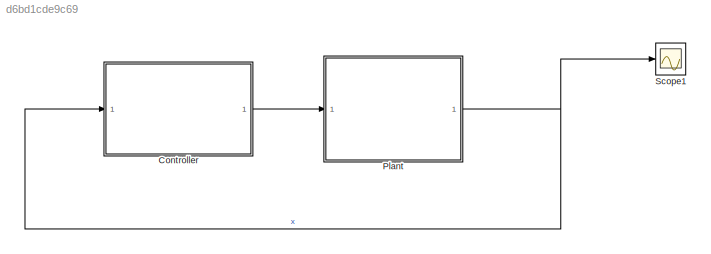
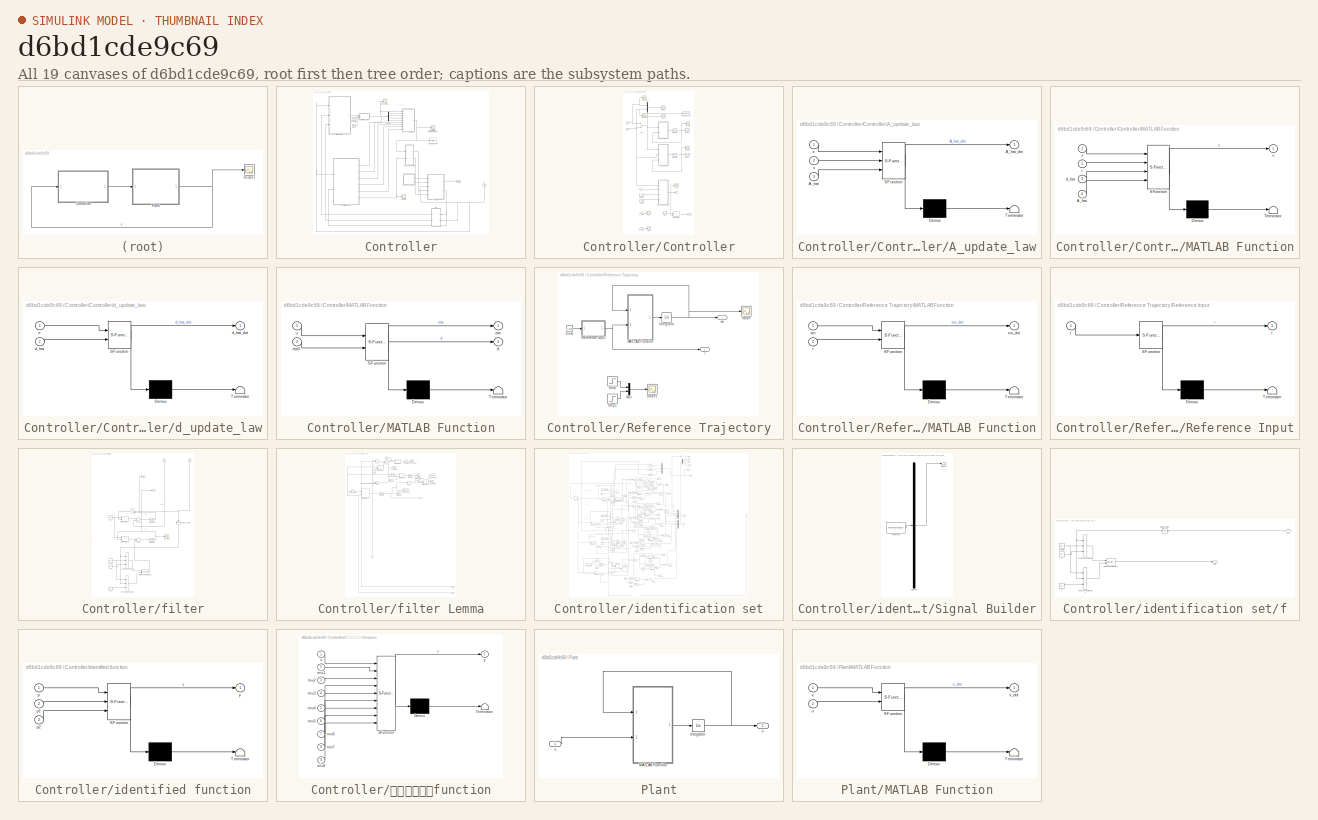
[diagram: thumbnail index - all 19 canvases of the model, root first then tree order]
MODEL slx_d6bd1cde9c69
KIND model
CONFIG AbsTol = 1e-4
CONFIG EnableMultiTasking = off
CONFIG FixedStep = 0.01
CONFIG MaxStep = 1e-3
CONFIG MinStep = auto
CONFIG RelTol = 1e-3
CONFIG SampleTimeConstraint = Unconstrained
CONFIG Solver = ode4
CONFIG SolverName = ode4
CONFIG StartTime = 0.0
CONFIG StopTime = 10
BLOCK [SubSystem] Controller
  Ports = [1, 1]
  RequestExecContextInheritance = off
  Variant = off
BLOCK [Clock] Controller/Clock
BLOCK [Constant] Controller/Constant
  Value = flag
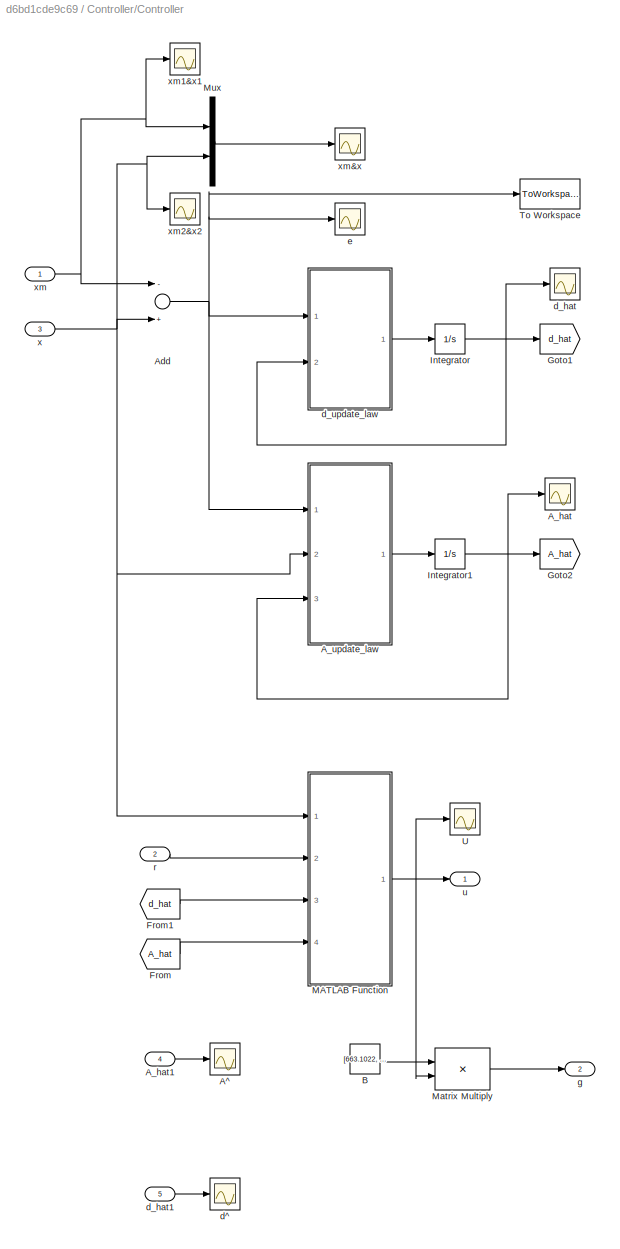
BLOCK [SubSystem] Controller/Controller
  Ports = [5, 2]
  RequestExecContextInheritance = off
  Variant = off
BLOCK [Scope] Controller/Controller/A^
  NumInputPorts = 1
  Ports = [1]
  ScopeSpecificationString = Simulink.scopes.TimeScopeBlockCfg('CurrentConfiguration', extmgr.ConfigurationSet(extmgr.Configuration('Core','General UI',true),extmgr.Configuration('Core','Source UI',true),extmgr.Configuration('Sources','WiredSimulink',true,'DataLoggingVariableName','ScopeData9'),extmgr.Configuration('Visuals','Time Domain',true,'SerializedDisplays',{struct('MinYLimReal','-6.86','MaxYLimReal','1.74','YLabelReal...<+1382ch>
BLOCK [Scope] Controller/Controller/A_hat
  NumInputPorts = 1
  Ports = [1]
  ScopeSpecificationString = Simulink.scopes.TimeScopeBlockCfg('CurrentConfiguration', extmgr.ConfigurationSet(extmgr.Configuration('Core','General UI',true),extmgr.Configuration('Core','Source UI',true),extmgr.Configuration('Sources','WiredSimulink',true,'DataLoggingVariableName','ScopeData2'),extmgr.Configuration('Visuals','Time Domain',true,'SerializedDisplays',{struct('MinYLimReal','-2789012.38331','MaxYLimReal','25101060...<+1499ch>
BLOCK [Inport] Controller/Controller/A_hat1
  IconDisplay = Port number
  Port = 4
BLOCK [SubSystem] Controller/Controller/A_update_law
  ErrorFcn = Stateflow.Translate.translate
  PermitHierarchicalResolution = ExplicitOnly
  Ports = [3, 1]
  RequestExecContextInheritance = off
  SFBlockType = MATLAB Function
  TreatAsAtomicUnit = on
  Variant = off
BLOCK [Demux] Controller/Controller/A_update_law/ Demux 
  Outputs = 1
  Ports = [1, 1]
BLOCK [S-Function] Controller/Controller/A_update_law/ SFunction 
  EnableBusSupport = on
  FunctionName = sf_sfun
  Parameters = Gamma_A,P,gamma_A
  PortCounts = [3 2]
  Ports = [3, 2]
  SFcnIsStateOwnerBlock = off
  SFunctionDeploymentMode = off
  Tag = Stateflow S-Function MRAC2016 3
BLOCK [Terminator] Controller/Controller/A_update_law/ Terminator 
BLOCK [Inport] Controller/Controller/A_update_law/A_hat
  IconDisplay = Port number
  Port = 3
BLOCK [Outport] Controller/Controller/A_update_law/A_hat_dot
  IconDisplay = Port number
BLOCK [Inport] Controller/Controller/A_update_law/e
  IconDisplay = Port number
BLOCK [Inport] Controller/Controller/A_update_law/x
  IconDisplay = Port number
  Port = 2
BLOCK [Sum] Controller/Controller/Add
  InputSameDT = off
  Inputs = -+
  OutDataTypeStr = Inherit: Inherit via internal rule
  Ports = [2, 1]
  SaturateOnIntegerOverflow = off
BLOCK [Constant] Controller/Controller/B
  Value = [663.1022, -42.7; 1331.7824, 116.5044]
  VectorParams1D = off
BLOCK [From] Controller/Controller/From
  GotoTag = A_hat
BLOCK [From] Controller/Controller/From1
  GotoTag = d_hat
BLOCK [Goto] Controller/Controller/Goto1
  GotoTag = d_hat
BLOCK [Goto] Controller/Controller/Goto2
  GotoTag = A_hat
BLOCK [Integrator] Controller/Controller/Integrator
  InitialCondition = d_hat_0
  Ports = [1, 1]
BLOCK [Integrator] Controller/Controller/Integrator1
  InitialCondition = A_hat_0
  Ports = [1, 1]
BLOCK [SubSystem] Controller/Controller/MATLAB Function
  ErrorFcn = Stateflow.Translate.translate
  PermitHierarchicalResolution = ExplicitOnly
  Ports = [4, 1]
  RequestExecContextInheritance = off
  SFBlockType = MATLAB Function
  TreatAsAtomicUnit = on
  Variant = off
BLOCK [Demux] Controller/Controller/MATLAB Function/ Demux 
  Outputs = 1
  Ports = [1, 1]
BLOCK [S-Function] Controller/Controller/MATLAB Function/ SFunction 
  EnableBusSupport = on
  FunctionName = sf_sfun
  Parameters = Am,B,Bm,dm
  PortCounts = [4 2]
  Ports = [4, 2]
  SFcnIsStateOwnerBlock = off
  SFunctionDeploymentMode = off
  Tag = Stateflow S-Function MRAC2016 4
BLOCK [Terminator] Controller/Controller/MATLAB Function/ Terminator 
BLOCK [Inport] Controller/Controller/MATLAB Function/A_hat
  IconDisplay = Port number
  Port = 4
BLOCK [Inport] Controller/Controller/MATLAB Function/d_hat
  IconDisplay = Port number
  Port = 3
BLOCK [Inport] Controller/Controller/MATLAB Function/r
  IconDisplay = Port number
  Port = 2
BLOCK [Outport] Controller/Controller/MATLAB Function/u
  IconDisplay = Port number
BLOCK [Inport] Controller/Controller/MATLAB Function/x
  IconDisplay = Port number
BLOCK [Product] Controller/Controller/Matrix Multiply
  InputSameDT = off
  Multiplication = Matrix(*)
  OutDataTypeStr = Inherit: Inherit via internal rule
  Ports = [2, 1]
  RndMeth = Floor
  SaturateOnIntegerOverflow = off
BLOCK [Mux] Controller/Controller/Mux
  DisplayOption = bar
  Inputs = 2
  Ports = [2, 1]
BLOCK [ToWorkspace] Controller/Controller/To Workspace
  FixptAsFi = on
  MaxDataPoints = inf
  Ports = [1]
  SampleTime = -1
  Save2DSignal = 3-D array (concatenate along third dimension)
  SaveFormat = Timeseries
  VariableName = e
BLOCK [Scope] Controller/Controller/U
  NumInputPorts = 1
  Ports = [1]
  ScopeSpecificationString = Simulink.scopes.TimeScopeBlockCfg('CurrentConfiguration', extmgr.ConfigurationSet(extmgr.Configuration('Core','General UI',true),extmgr.Configuration('Core','Source UI',true),extmgr.Configuration('Sources','WiredSimulink',true),extmgr.Configuration('Visuals','Time Domain',true,'SerializedDisplays',{struct('MinYLimReal','-207416238.01342','MaxYLimReal','207250746.22718','YLabelReal','','MinYLimMag'...<+1454ch>
BLOCK [Scope] Controller/Controller/d^
  NumInputPorts = 1
  Ports = [1]
  ScopeSpecificationString = Simulink.scopes.TimeScopeBlockCfg('CurrentConfiguration', extmgr.ConfigurationSet(extmgr.Configuration('Core','General UI',true),extmgr.Configuration('Core','Source UI',true),extmgr.Configuration('Sources','WiredSimulink',true,'DataLoggingVariableName','ScopeData10'),extmgr.Configuration('Visuals','Time Domain',true,'SerializedDisplays',{struct('MinYLimReal','-0.075','MaxYLimReal','0.675','YLabelR...<+1367ch>
BLOCK [Scope] Controller/Controller/d_hat
  NumInputPorts = 1
  Ports = [1]
  ScopeSpecificationString = Simulink.scopes.TimeScopeBlockCfg('CurrentConfiguration', extmgr.ConfigurationSet(extmgr.Configuration('Core','General UI',true),extmgr.Configuration('Core','Source UI',true),extmgr.Configuration('Sources','WiredSimulink',true,'DataLoggingVariableName','ScopeData1'),extmgr.Configuration('Visuals','Time Domain',true,'SerializedDisplays',{struct('MinYLimReal','-3107652.10793','MaxYLimReal','692153.1...<+1457ch>
BLOCK [Inport] Controller/Controller/d_hat1
  IconDisplay = Port number
  Port = 5
BLOCK [SubSystem] Controller/Controller/d_update_law
  ErrorFcn = Stateflow.Translate.translate
  PermitHierarchicalResolution = ExplicitOnly
  Ports = [2, 1]
  RequestExecContextInheritance = off
  SFBlockType = MATLAB Function
  TreatAsAtomicUnit = on
  Variant = off
BLOCK [Demux] Controller/Controller/d_update_law/ Demux 
  Outputs = 1
  Ports = [1, 1]
BLOCK [S-Function] Controller/Controller/d_update_law/ SFunction 
  EnableBusSupport = on
  FunctionName = sf_sfun
  Parameters = P,beta_1,gamma_d
  PortCounts = [2 2]
  Ports = [2, 2]
  SFcnIsStateOwnerBlock = off
  SFunctionDeploymentMode = off
  Tag = Stateflow S-Function MRAC2016 1
BLOCK [Terminator] Controller/Controller/d_update_law/ Terminator 
BLOCK [Inport] Controller/Controller/d_update_law/d_hat
  IconDisplay = Port number
  Port = 2
BLOCK [Outport] Controller/Controller/d_update_law/d_hat_dot
  IconDisplay = Port number
BLOCK [Inport] Controller/Controller/d_update_law/e
  IconDisplay = Port number
BLOCK [Scope] Controller/Controller/e
  NumInputPorts = 1
  Ports = [1]
  ScopeSpecificationString = Simulink.scopes.TimeScopeBlockCfg('CurrentConfiguration', extmgr.ConfigurationSet(extmgr.Configuration('Core','General UI',true),extmgr.Configuration('Core','Source UI',true),extmgr.Configuration('Sources','WiredSimulink',true,'DataLoggingVariableName','ScopeData3'),extmgr.Configuration('Visuals','Time Domain',true,'SerializedDisplays',{struct('MinYLimReal','-0.50463','MaxYLimReal','0.61163','YLab...<+1445ch>
BLOCK [Outport] Controller/Controller/g
  IconDisplay = Port number
  Port = 2
BLOCK [Inport] Controller/Controller/r
  IconDisplay = Port number
  Port = 2
BLOCK [Outport] Controller/Controller/u
  IconDisplay = Port number
BLOCK [Inport] Controller/Controller/x
  IconDisplay = Port number
  Port = 3
BLOCK [Inport] Controller/Controller/xm
  IconDisplay = Port number
BLOCK [Scope] Controller/Controller/xm&x
  NumInputPorts = 1
  Ports = [1]
  ScopeSpecificationString = Simulink.scopes.TimeScopeBlockCfg('CurrentConfiguration', extmgr.ConfigurationSet(extmgr.Configuration('Core','General UI',true),extmgr.Configuration('Core','Source UI',true),extmgr.Configuration('Sources','WiredSimulink',true,'DataLoggingVariableName','ScopeData4'),extmgr.Configuration('Visuals','Time Domain',true,'SerializedDisplays',{struct('MinYLimReal','-15.75669','MaxYLimReal','129.15739','Y...<+1438ch>
BLOCK [Scope] Controller/Controller/xm1&x1
  NumInputPorts = 1
  Ports = [1]
  ScopeSpecificationString = Simulink.scopes.TimeScopeBlockCfg('CurrentConfiguration', extmgr.ConfigurationSet(extmgr.Configuration('Core','General UI',true),extmgr.Configuration('Core','Source UI',true),extmgr.Configuration('Sources','WiredSimulink',true,'DataLoggingVariableName','ScopeData1'),extmgr.Configuration('Visuals','Time Domain',true,'SerializedDisplays',{struct('MinYLimReal','-15.74818','MaxYLimReal','141.73359','Y...<+1407ch>
BLOCK [Scope] Controller/Controller/xm2&x2
  NumInputPorts = 1
  Ports = [1]
  ScopeSpecificationString = Simulink.scopes.TimeScopeBlockCfg('CurrentConfiguration', extmgr.ConfigurationSet(extmgr.Configuration('Core','General UI',true),extmgr.Configuration('Core','Source UI',true),extmgr.Configuration('Sources','WiredSimulink',true,'DataLoggingVariableName','ScopeData2'),extmgr.Configuration('Visuals','Time Domain',true,'SerializedDisplays',{struct('MinYLimReal','-1250.00000','MaxYLimReal','1250.00000'...<+1417ch>
BLOCK [Demux] Controller/Demux
  DisplayOption = bar
  Ports = [1, 4]
BLOCK [Inport] Controller/In1
  IconDisplay = Port number
BLOCK [SubSystem] Controller/MATLAB Function
  ErrorFcn = Stateflow.Translate.translate
  PermitHierarchicalResolution = ExplicitOnly
  Ports = [2, 2]
  RequestExecContextInheritance = off
  SFBlockType = MATLAB Function
  TreatAsAtomicUnit = on
  Variant = off
BLOCK [Demux] Controller/MATLAB Function/ Demux 
  Outputs = 1
  Ports = [1, 1]
BLOCK [S-Function] Controller/MATLAB Function/ SFunction 
  EnableBusSupport = on
  FunctionName = sf_sfun
  PortCounts = [2 3]
  Ports = [2, 3]
  SFcnIsStateOwnerBlock = off
  SFunctionDeploymentMode = off
  Tag = Stateflow S-Function MRAC2016 7
BLOCK [Terminator] Controller/MATLAB Function/ Terminator 
BLOCK [Outport] Controller/MATLAB Function/d
  IconDisplay = Port number
  Port = 2
BLOCK [Outport] Controller/MATLAB Function/eta
  IconDisplay = Port number
BLOCK [Inport] Controller/MATLAB Function/eta0
  IconDisplay = Port number
  Port = 2
BLOCK [Inport] Controller/MATLAB Function/u
  IconDisplay = Port number
BLOCK [Outport] Controller/Out1
  IconDisplay = Port number
BLOCK [SubSystem] Controller/Reference Trajectory
  Ports = [0, 2]
  RequestExecContextInheritance = off
  Variant = off
BLOCK [Clock] Controller/Reference Trajectory/Clock
BLOCK [Integrator] Controller/Reference Trajectory/Integrator
  InitialCondition = xm_0
  Ports = [1, 1]
BLOCK [SubSystem] Controller/Reference Trajectory/MATLAB Function
  ErrorFcn = Stateflow.Translate.translate
  PermitHierarchicalResolution = ExplicitOnly
  Ports = [2, 1]
  RequestExecContextInheritance = off
  SFBlockType = MATLAB Function
  TreatAsAtomicUnit = on
  Variant = off
BLOCK [Demux] Controller/Reference Trajectory/MATLAB Function/ Demux 
  Outputs = 1
  Ports = [1, 1]
BLOCK [S-Function] Controller/Reference Trajectory/MATLAB Function/ SFunction 
  EnableBusSupport = on
  FunctionName = sf_sfun
  Parameters = Am,Bm,dm
  PortCounts = [2 2]
  Ports = [2, 2]
  SFcnIsStateOwnerBlock = off
  SFunctionDeploymentMode = off
  Tag = Stateflow S-Function MRAC2016 5
BLOCK [Terminator] Controller/Reference Trajectory/MATLAB Function/ Terminator 
BLOCK [Inport] Controller/Reference Trajectory/MATLAB Function/r
  IconDisplay = Port number
  Port = 2
BLOCK [Inport] Controller/Reference Trajectory/MATLAB Function/xm
  IconDisplay = Port number
BLOCK [Outport] Controller/Reference Trajectory/MATLAB Function/xm_dot
  IconDisplay = Port number
BLOCK [Mux] Controller/Reference Trajectory/Mux
  DisplayOption = bar
  Inputs = 2
  Ports = [2, 1]
BLOCK [SubSystem] Controller/Reference Trajectory/Reference Input
  ErrorFcn = Stateflow.Translate.translate
  PermitHierarchicalResolution = ExplicitOnly
  Ports = [1, 1]
  RequestExecContextInheritance = off
  SFBlockType = MATLAB Function
  TreatAsAtomicUnit = on
  Variant = off
BLOCK [Demux] Controller/Reference Trajectory/Reference Input/ Demux 
  Outputs = 1
  Ports = [1, 1]
BLOCK [S-Function] Controller/Reference Trajectory/Reference Input/ SFunction 
  EnableBusSupport = on
  FunctionName = sf_sfun
  PortCounts = [1 2]
  Ports = [1, 2]
  SFcnIsStateOwnerBlock = off
  SFunctionDeploymentMode = off
  Tag = Stateflow S-Function MRAC2016 6
BLOCK [Terminator] Controller/Reference Trajectory/Reference Input/ Terminator 
BLOCK [Outport] Controller/Reference Trajectory/Reference Input/r
  IconDisplay = Port number
BLOCK [Inport] Controller/Reference Trajectory/Reference Input/t
  IconDisplay = Port number
BLOCK [Scope] Controller/Reference Trajectory/Scope
  NumInputPorts = 1
  Ports = [1]
  ScopeSpecificationString = Simulink.scopes.TimeScopeBlockCfg('CurrentConfiguration', extmgr.ConfigurationSet(extmgr.Configuration('Core','General UI',true),extmgr.Configuration('Core','Source UI',true),extmgr.Configuration('Sources','WiredSimulink',true,'DataLoggingVariableName','ScopeData2'),extmgr.Configuration('Visuals','Time Domain',true,'SerializedDisplays',{struct('MinYLimReal','-15.74818','MaxYLimReal','141.73359','Y...<+1426ch>
BLOCK [Scope] Controller/Reference Trajectory/Scope1
  NumInputPorts = 1
  Ports = [1]
  ScopeSpecificationString = Simulink.scopes.TimeScopeBlockCfg('CurrentConfiguration', extmgr.ConfigurationSet(extmgr.Configuration('Core','General UI',true),extmgr.Configuration('Core','Source UI',true),extmgr.Configuration('Sources','WiredSimulink',true,'DataLoggingVariableName','ScopeData1'),extmgr.Configuration('Visuals','Time Domain',true,'SerializedDisplays',{struct('MinYLimReal','-66.59168','MaxYLimReal','599.32511','Y...<+1426ch>
BLOCK [Step] Controller/Reference Trajectory/Step
  SampleTime = 0
BLOCK [Step] Controller/Reference Trajectory/Step1
  SampleTime = 0
BLOCK [Outport] Controller/Reference Trajectory/r
  IconDisplay = Port number
  Port = 2
BLOCK [Outport] Controller/Reference Trajectory/xm
  IconDisplay = Port number
BLOCK [Scope] Controller/Scope
  NumInputPorts = 1
  Ports = [1]
  ScopeSpecificationString = Simulink.scopes.TimeScopeBlockCfg('CurrentConfiguration', extmgr.ConfigurationSet(extmgr.Configuration('Core','General UI',true),extmgr.Configuration('Core','Source UI',true),extmgr.Configuration('Sources','WiredSimulink',true,'DataLoggingVariableName','ScopeData2'),extmgr.Configuration('Visuals','Time Domain',true,'SerializedDisplays',{struct('MinYLimReal','-6.86','MaxYLimReal','1.74','YLabelReal...<+1414ch>
BLOCK [ToWorkspace] Controller/To Workspace
  MaxDataPoints = inf
  Ports = [1]
  SampleTime = -1
  Save2DSignal = 2-D array (concatenate along first dimension)
  VariableName = switchsig
BLOCK [SubSystem] Controller/filter
  Ports = [2, 2]
  RequestExecContextInheritance = off
  Variant = off
BLOCK [SubSystem] Controller/filter Lemma
  Ports = [3, 1]
  RequestExecContextInheritance = off
  Variant = off
BLOCK [Constant] Controller/filter Lemma/A0
  Value = [-1 0; 0 -2]
BLOCK [Sum] Controller/filter Lemma/Add12
  InputSameDT = off
  Inputs = +-
  OutDataTypeStr = Inherit: Inherit via internal rule
  Ports = [2, 1]
  SaturateOnIntegerOverflow = off
BLOCK [Sum] Controller/filter Lemma/Add13
  InputSameDT = off
  Inputs = +-
  OutDataTypeStr = Inherit: Inherit via internal rule
  Ports = [2, 1]
  SaturateOnIntegerOverflow = off
BLOCK [Sum] Controller/filter Lemma/Add14
  InputSameDT = off
  Inputs = +-
  OutDataTypeStr = Inherit: Inherit via internal rule
  Ports = [2, 1]
  SaturateOnIntegerOverflow = off
BLOCK [Sum] Controller/filter Lemma/Add15
  InputSameDT = off
  Inputs = -+
  OutDataTypeStr = Inherit: Inherit via internal rule
  Ports = [2, 1]
  SaturateOnIntegerOverflow = off
BLOCK [Outport] Controller/filter Lemma/G
  IconDisplay = Port number
BLOCK [Integrator] Controller/filter Lemma/Integrator4
  Ports = [1, 1]
BLOCK [Integrator] Controller/filter Lemma/Integrator5
  Ports = [1, 1]
BLOCK [Integrator] Controller/filter Lemma/Integrator6
  Ports = [1, 1]
BLOCK [Math] Controller/filter Lemma/Math Function18
  Operator = transpose
  Ports = [1, 1]
BLOCK [Math] Controller/filter Lemma/Math Function19
  Operator = transpose
  Ports = [1, 1]
BLOCK [Math] Controller/filter Lemma/Math Function5
  Operator = transpose
  Ports = [1, 1]
BLOCK [Product] Controller/filter Lemma/Matrix Multiply15
  InputSameDT = off
  Multiplication = Matrix(*)
  OutDataTypeStr = Inherit: Inherit via internal rule
  Ports = [2, 1]
  RndMeth = Floor
  SaturateOnIntegerOverflow = off
BLOCK [Product] Controller/filter Lemma/Matrix Multiply16
  InputSameDT = off
  Multiplication = Matrix(*)
  OutDataTypeStr = Inherit: Inherit via internal rule
  Ports = [2, 1]
  RndMeth = Floor
  SaturateOnIntegerOverflow = off
BLOCK [Product] Controller/filter Lemma/Matrix Multiply17
  InputSameDT = off
  Multiplication = Matrix(*)
  OutDataTypeStr = Inherit: Inherit via internal rule
  Ports = [2, 1]
  RndMeth = Floor
  SaturateOnIntegerOverflow = off
BLOCK [Product] Controller/filter Lemma/Matrix Multiply18
  InputSameDT = off
  Multiplication = Matrix(*)
  OutDataTypeStr = Inherit: Inherit via internal rule
  Ports = [2, 1]
  RndMeth = Floor
  SaturateOnIntegerOverflow = off
BLOCK [Product] Controller/filter Lemma/Matrix Multiply19
  InputSameDT = off
  Multiplication = Matrix(*)
  OutDataTypeStr = Inherit: Inherit via internal rule
  Ports = [2, 1]
  RndMeth = Floor
  SaturateOnIntegerOverflow = off
BLOCK [Product] Controller/filter Lemma/Product
  InputSameDT = off
  Inputs = /
  Multiplication = Matrix(*)
  OutDataTypeStr = Inherit: Inherit via internal rule
  Ports = [1, 1]
  RndMeth = Floor
  SaturateOnIntegerOverflow = off
BLOCK [Scope] Controller/filter Lemma/Scope H
  NumInputPorts = 1
  Ports = [1]
  ScopeSpecificationString = Simulink.scopes.TimeScopeBlockCfg('CurrentConfiguration', extmgr.ConfigurationSet(extmgr.Configuration('Core','General UI',true),extmgr.Configuration('Core','Source UI',true),extmgr.Configuration('Sources','WiredSimulink',true,'DataLoggingVariableName','ScopeData2','DataLoggingLimitDataPoints',true,'DataLoggingSaveFormat','Array','DataLoggingDecimation','1','DataLoggingDecimateData',true),extmgr.C...<+165ch>
BLOCK [Scope] Controller/filter Lemma/Scope dkesai//dt
  NumInputPorts = 1
  Ports = [1]
  ScopeSpecificationString = Simulink.scopes.TimeScopeBlockCfg('CurrentConfiguration', extmgr.ConfigurationSet(extmgr.Configuration('Core','General UI',true),extmgr.Configuration('Core','Source UI',true),extmgr.Configuration('Sources','WiredSimulink',true,'DataLoggingVariableName','ScopeData4','DataLoggingLimitDataPoints',true,'DataLoggingSaveFormat','Array','DataLoggingDecimation','1','DataLoggingDecimateData',true),extmgr.C...<+165ch>
BLOCK [Scope] Controller/filter Lemma/Scope e^4
  NumInputPorts = 1
  Ports = [1]
  ScopeSpecificationString = Simulink.scopes.TimeScopeBlockCfg('CurrentConfiguration', extmgr.ConfigurationSet(extmgr.Configuration('Core','General UI',true),extmgr.Configuration('Core','Source UI',true),extmgr.Configuration('Sources','WiredSimulink',true,'DataLoggingVariableName','ScopeData5','DataLoggingLimitDataPoints',true,'DataLoggingSaveFormat','Array','DataLoggingDecimation','1','DataLoggingDecimateData',true),extmgr.C...<+165ch>
BLOCK [Scope] Controller/filter Lemma/Scope kesai
  NumInputPorts = 1
  Ports = [1]
  ScopeSpecificationString = Simulink.scopes.TimeScopeBlockCfg('CurrentConfiguration', extmgr.ConfigurationSet(extmgr.Configuration('Core','General UI',true),extmgr.Configuration('Core','Source UI',true),extmgr.Configuration('Sources','WiredSimulink',true,'DataLoggingVariableName','ScopeData6','DataLoggingLimitDataPoints',true,'DataLoggingSaveFormat','Array','DataLoggingDecimation','1','DataLoggingDecimateData',true),extmgr.C...<+165ch>
BLOCK [Scope] Controller/filter Lemma/Scope real eta
  NumInputPorts = 1
  Ports = [1]
  ScopeSpecificationString = Simulink.scopes.TimeScopeBlockCfg('CurrentConfiguration', extmgr.ConfigurationSet(extmgr.Configuration('Core','General UI',true),extmgr.Configuration('Core','Source UI',true),extmgr.Configuration('Sources','WiredSimulink',true,'DataLoggingVariableName','ScopeData7','DataLoggingLimitDataPoints',true,'DataLoggingSaveFormat','Array','DataLoggingDecimation','1','DataLoggingDecimateData',true),extmgr.C...<+165ch>
BLOCK [ToWorkspace] Controller/filter Lemma/To Workspace
  FixptAsFi = on
  MaxDataPoints = inf
  Ports = [1]
  SampleTime = -1
  Save2DSignal = 3-D array (concatenate along third dimension)
  SaveFormat = Timeseries
  VariableName = simout
BLOCK [ToWorkspace] Controller/filter Lemma/To Workspace4
  MaxDataPoints = inf
  Ports = [1]
  SampleTime = -1
  Save2DSignal = 2-D array (concatenate along first dimension)
  VariableName = eta
BLOCK [Constant] Controller/filter Lemma/eta
  Value = [0 1 0 -4.58 0 1]
BLOCK [Inport] Controller/filter Lemma/w
  IconDisplay = Port number
  Port = 3
BLOCK [Inport] Controller/filter Lemma/w0
  IconDisplay = Port number
  Port = 2
BLOCK [Inport] Controller/filter Lemma/x
  IconDisplay = Port number
BLOCK [Constant] Controller/filter/0 vector
  Value = [0 0]
  VectorParams1D = off
BLOCK [Constant] Controller/filter/A0i
  Value = [-1 0; 0 -1]
  VectorParams1D = off
BLOCK [Sum] Controller/filter/Add12
  InputSameDT = off
  OutDataTypeStr = Inherit: Inherit via internal rule
  Ports = [2, 1]
  SaturateOnIntegerOverflow = off
BLOCK [Sum] Controller/filter/Add13
  InputSameDT = off
  Inputs = -+
  OutDataTypeStr = Inherit: Inherit via internal rule
  Ports = [2, 1]
  SaturateOnIntegerOverflow = off
BLOCK [Sum] Controller/filter/Add14
  InputSameDT = off
  OutDataTypeStr = Inherit: Inherit via internal rule
  Ports = [2, 1]
  SaturateOnIntegerOverflow = off
BLOCK [Constant] Controller/filter/I1
  Value = [1 0]
  VectorParams1D = off
BLOCK [Constant] Controller/filter/I2
  Value = [0 1]
  VectorParams1D = off
BLOCK [Integrator] Controller/filter/Integrator4
  Ports = [1, 1]
BLOCK [Integrator] Controller/filter/Integrator5
  Ports = [1, 1]
BLOCK [Math] Controller/filter/Math Function5
  Operator = transpose
  Ports = [1, 1]
BLOCK [Concatenate] Controller/filter/Matrix Concatenate2
  Mode = Multidimensional array
  Ports = [2, 1]
BLOCK [Product] Controller/filter/Matrix Multiply11
  InputSameDT = off
  Multiplication = Matrix(*)
  OutDataTypeStr = Inherit: Inherit via internal rule
  Ports = [2, 1]
  RndMeth = Floor
  SaturateOnIntegerOverflow = off
BLOCK [Product] Controller/filter/Matrix Multiply13
  InputSameDT = off
  Multiplication = Matrix(*)
  OutDataTypeStr = Inherit: Inherit via internal rule
  Ports = [2, 1]
  RndMeth = Floor
  SaturateOnIntegerOverflow = off
BLOCK [Scope] Controller/filter/Scope w
  NumInputPorts = 1
  Ports = [1]
  ScopeSpecificationString = Simulink.scopes.TimeScopeBlockCfg('CurrentConfiguration', extmgr.ConfigurationSet(extmgr.Configuration('Core','General UI',true),extmgr.Configuration('Core','Source UI',true),extmgr.Configuration('Sources','WiredSimulink',true,'DataLoggingLimitDataPoints',true,'DataLoggingSaveFormat','Array','DataLoggingDecimation','1','DataLoggingDecimateData',true,'DataLoggingVariableName','ScopeData3'),extmgr.C...<+1849ch>
BLOCK [Concatenate] Controller/filter/Vector Concatenate
  NumInputs = 3
  Ports = [3, 1]
BLOCK [Concatenate] Controller/filter/Vector Concatenate1
  NumInputs = 3
  Ports = [3, 1]
BLOCK [Inport] Controller/filter/g 
  IconDisplay = Port number
BLOCK [Outport] Controller/filter/w
  IconDisplay = Port number
  Port = 2
BLOCK [Outport] Controller/filter/w0
  IconDisplay = Port number
BLOCK [Inport] Controller/filter/x
  IconDisplay = Port number
  Port = 2
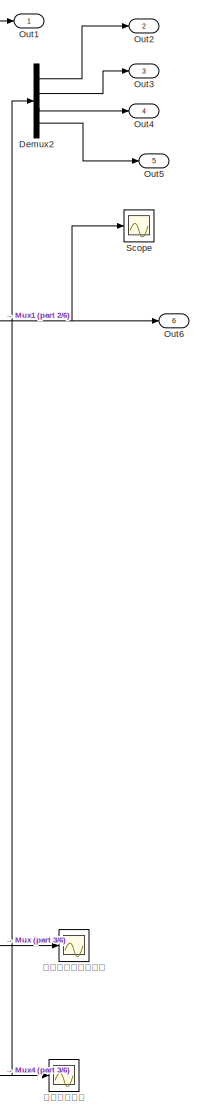
[diagram: Controller/identification set - part 1/6, top center region]
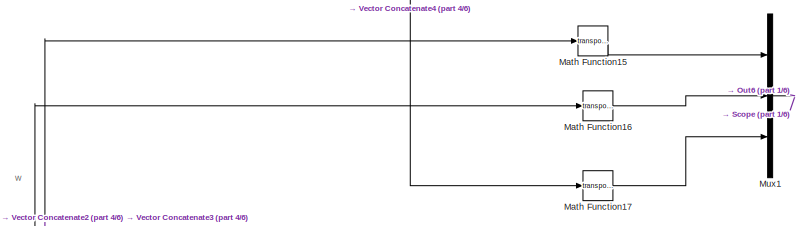
[diagram: Controller/identification set - part 2/6, top center region]
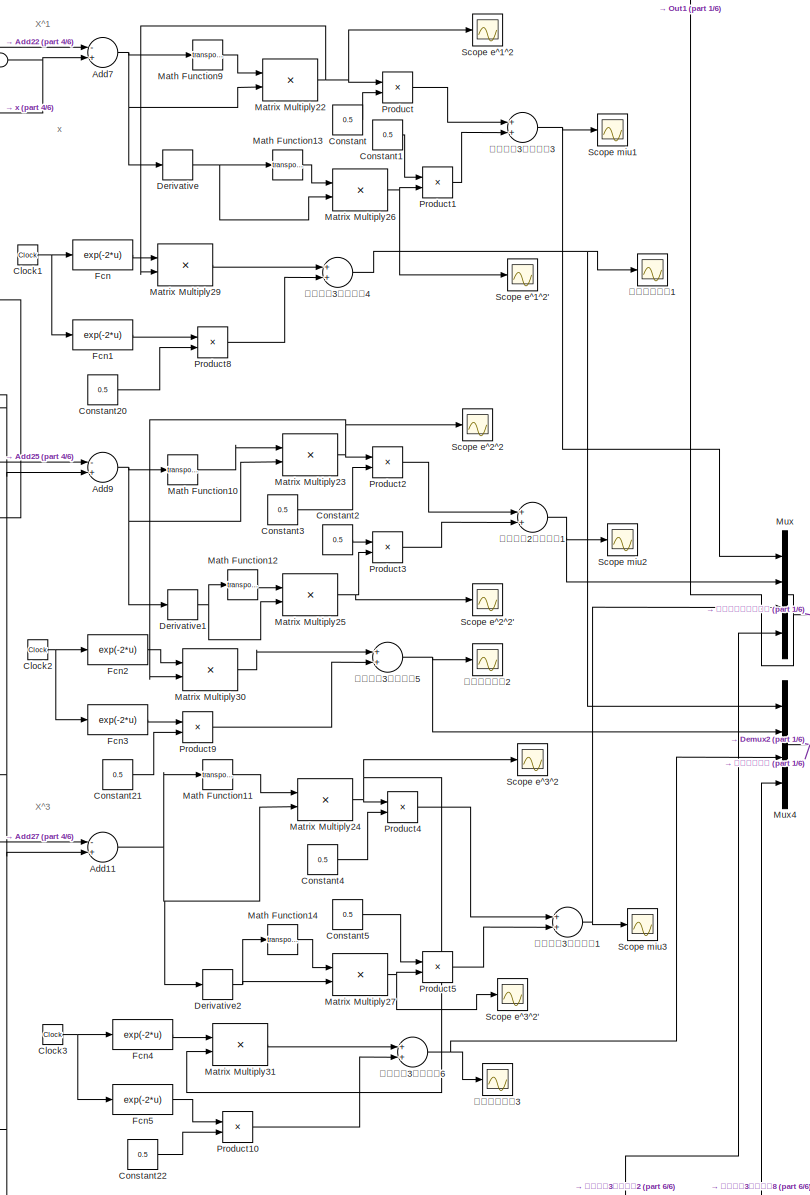
[diagram: Controller/identification set - part 3/6, central region]
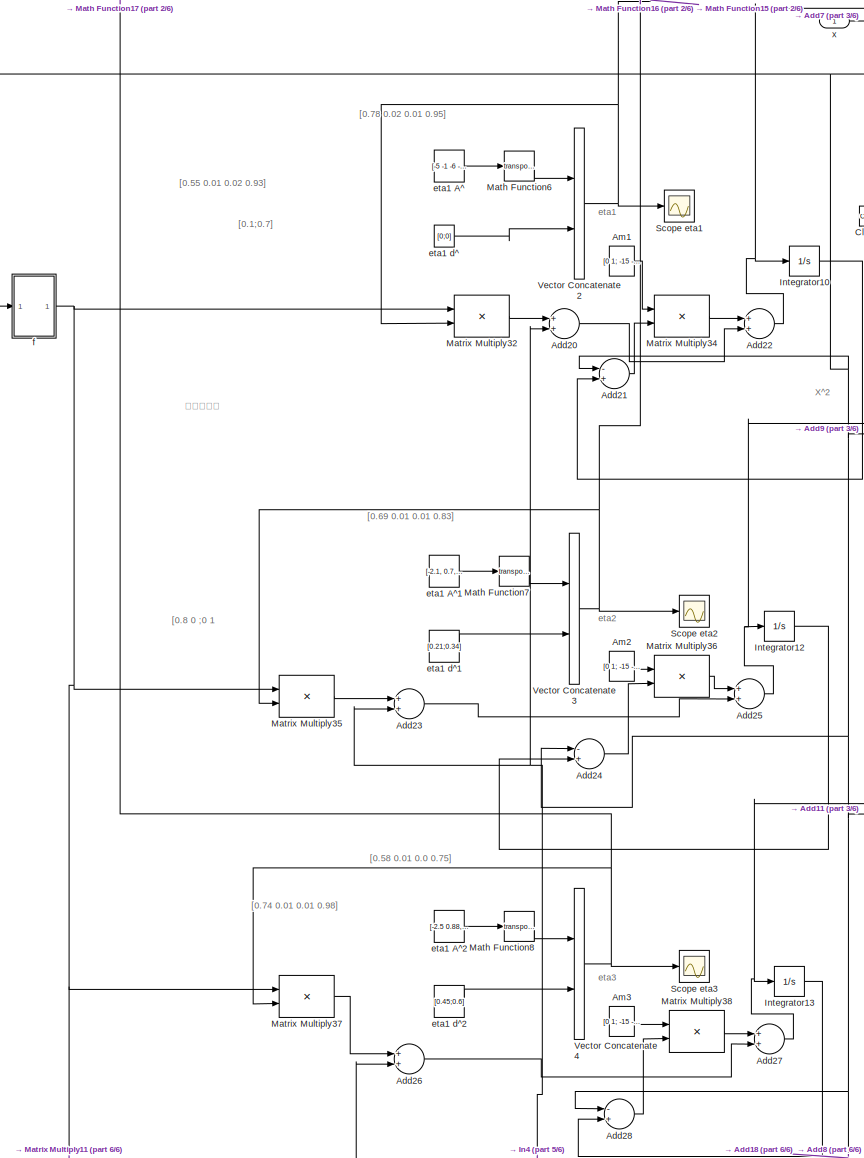
[diagram: Controller/identification set - part 4/6, middle left region]
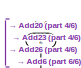
[diagram: Controller/identification set - part 5/6, middle right region]
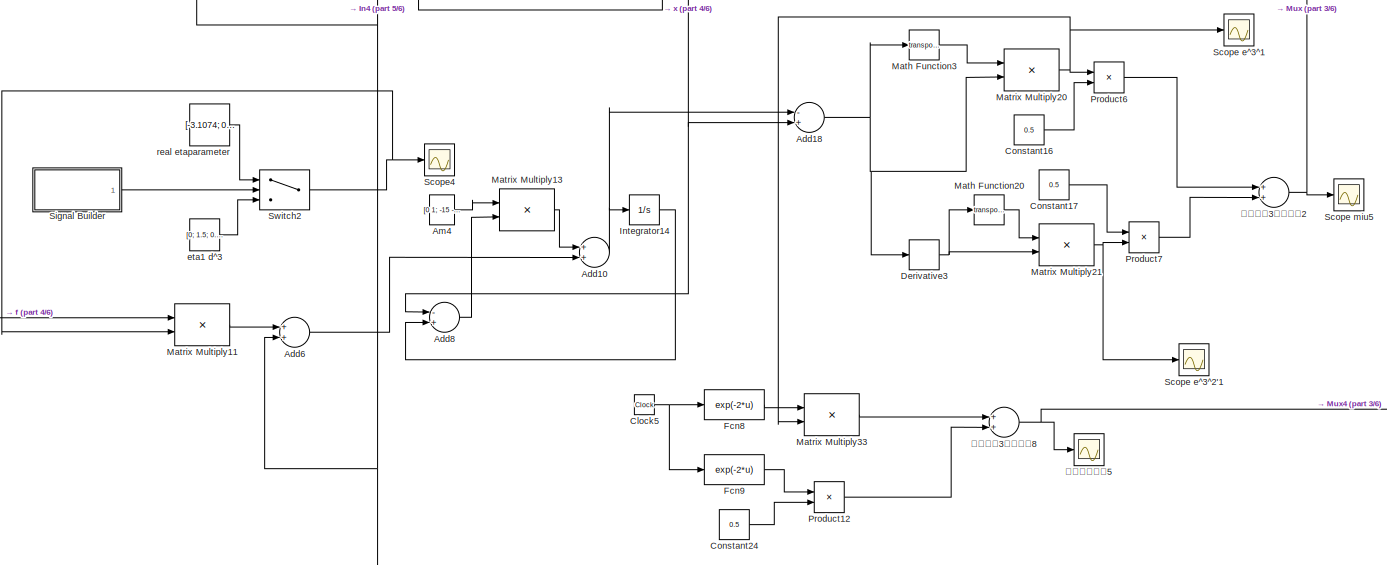
[diagram: Controller/identification set - part 6/6, bottom left region]
BLOCK [SubSystem] Controller/identification set
  Ports = [2, 6]
  RequestExecContextInheritance = off
  Variant = off
BLOCK [Scope] Controller/identification set/ 带导数项的切换指标
  NumInputPorts = 1
  Ports = [1]
  ScopeSpecificationString = Simulink.scopes.TimeScopeBlockCfg('CurrentConfiguration', extmgr.ConfigurationSet(extmgr.Configuration('Core','General UI',true),extmgr.Configuration('Core','Source UI',true),extmgr.Configuration('Sources','WiredSimulink',true,'DataLoggingVariableName','ScopeData3','DataLoggingLimitDataPoints',true,'DataLoggingSaveFormat','Array','DataLoggingDecimation','1','DataLoggingDecimateData',true),extmgr.C...<+1583ch>
BLOCK [Sum] Controller/identification set/Add10
  InputSameDT = off
  OutDataTypeStr = Inherit: Inherit via internal rule
  Ports = [2, 1]
  SaturateOnIntegerOverflow = off
BLOCK [Sum] Controller/identification set/Add11
  InputSameDT = off
  Inputs = -+
  OutDataTypeStr = Inherit: Inherit via internal rule
  Ports = [2, 1]
  SaturateOnIntegerOverflow = off
BLOCK [Sum] Controller/identification set/Add18
  InputSameDT = off
  Inputs = -+
  OutDataTypeStr = Inherit: Inherit via internal rule
  Ports = [2, 1]
  SaturateOnIntegerOverflow = off
BLOCK [Sum] Controller/identification set/Add20
  InputSameDT = off
  OutDataTypeStr = Inherit: Inherit via internal rule
  Ports = [2, 1]
  SaturateOnIntegerOverflow = off
BLOCK [Sum] Controller/identification set/Add21
  InputSameDT = off
  Inputs = -+
  OutDataTypeStr = Inherit: Inherit via internal rule
  Ports = [2, 1]
  SaturateOnIntegerOverflow = off
BLOCK [Sum] Controller/identification set/Add22
  InputSameDT = off
  OutDataTypeStr = Inherit: Inherit via internal rule
  Ports = [2, 1]
  SaturateOnIntegerOverflow = off
BLOCK [Sum] Controller/identification set/Add23
  InputSameDT = off
  OutDataTypeStr = Inherit: Inherit via internal rule
  Ports = [2, 1]
  SaturateOnIntegerOverflow = off
BLOCK [Sum] Controller/identification set/Add24
  InputSameDT = off
  Inputs = -+
  OutDataTypeStr = Inherit: Inherit via internal rule
  Ports = [2, 1]
  SaturateOnIntegerOverflow = off
BLOCK [Sum] Controller/identification set/Add25
  InputSameDT = off
  OutDataTypeStr = Inherit: Inherit via internal rule
  Ports = [2, 1]
  SaturateOnIntegerOverflow = off
BLOCK [Sum] Controller/identification set/Add26
  InputSameDT = off
  OutDataTypeStr = Inherit: Inherit via internal rule
  Ports = [2, 1]
  SaturateOnIntegerOverflow = off
BLOCK [Sum] Controller/identification set/Add27
  InputSameDT = off
  OutDataTypeStr = Inherit: Inherit via internal rule
  Ports = [2, 1]
  SaturateOnIntegerOverflow = off
BLOCK [Sum] Controller/identification set/Add28
  InputSameDT = off
  Inputs = -+
  OutDataTypeStr = Inherit: Inherit via internal rule
  Ports = [2, 1]
  SaturateOnIntegerOverflow = off
BLOCK [Sum] Controller/identification set/Add6
  InputSameDT = off
  OutDataTypeStr = Inherit: Inherit via internal rule
  Ports = [2, 1]
  SaturateOnIntegerOverflow = off
BLOCK [Sum] Controller/identification set/Add7
  InputSameDT = off
  Inputs = -+
  OutDataTypeStr = Inherit: Inherit via internal rule
  Ports = [2, 1]
  SaturateOnIntegerOverflow = off
BLOCK [Sum] Controller/identification set/Add8
  InputSameDT = off
  Inputs = -+
  OutDataTypeStr = Inherit: Inherit via internal rule
  Ports = [2, 1]
  SaturateOnIntegerOverflow = off
BLOCK [Sum] Controller/identification set/Add9
  InputSameDT = off
  Inputs = -+
  OutDataTypeStr = Inherit: Inherit via internal rule
  Ports = [2, 1]
  SaturateOnIntegerOverflow = off
BLOCK [Constant] Controller/identification set/Am1
  Value = [0 1; -15 -8]
  VectorParams1D = off
BLOCK [Constant] Controller/identification set/Am2
  Value = [0 1; -15 -8]
  VectorParams1D = off
BLOCK [Constant] Controller/identification set/Am3
  Value = [0 1; -15 -8]
  VectorParams1D = off
BLOCK [Constant] Controller/identification set/Am4
  Value = [0 1; -15 -8]
  VectorParams1D = off
BLOCK [Clock] Controller/identification set/Clock1
  Decimation = 50
BLOCK [Clock] Controller/identification set/Clock2
  Decimation = 50
BLOCK [Clock] Controller/identification set/Clock3
  Decimation = 50
BLOCK [Clock] Controller/identification set/Clock5
  Decimation = 50
BLOCK [Constant] Controller/identification set/Constant
  Value = 0.5
BLOCK [Constant] Controller/identification set/Constant1
  Value = 0.5
BLOCK [Constant] Controller/identification set/Constant16
  Value = 0.5
BLOCK [Constant] Controller/identification set/Constant17
  Value = 0.5
BLOCK [Constant] Controller/identification set/Constant2
  Value = 0.5
BLOCK [Constant] Controller/identification set/Constant20
  Value = 0.5
BLOCK [Constant] Controller/identification set/Constant21
  Value = 0.5
BLOCK [Constant] Controller/identification set/Constant22
  Value = 0.5
BLOCK [Constant] Controller/identification set/Constant24
  Value = 0.5
BLOCK [Constant] Controller/identification set/Constant3
  Value = 0.5
BLOCK [Constant] Controller/identification set/Constant4
  Value = 0.5
BLOCK [Constant] Controller/identification set/Constant5
  Value = 0.5
BLOCK [Demux] Controller/identification set/Demux2
  DisplayOption = bar
  Ports = [1, 4]
BLOCK [Derivative] Controller/identification set/Derivative
BLOCK [Derivative] Controller/identification set/Derivative1
BLOCK [Derivative] Controller/identification set/Derivative2
BLOCK [Derivative] Controller/identification set/Derivative3
BLOCK [Fcn] Controller/identification set/Fcn
  Expr = exp(-2*u)
BLOCK [Fcn] Controller/identification set/Fcn1
  Expr = exp(-2*u)
BLOCK [Fcn] Controller/identification set/Fcn2
  Expr = exp(-2*u)
BLOCK [Fcn] Controller/identification set/Fcn3
  Expr = exp(-2*u)
BLOCK [Fcn] Controller/identification set/Fcn4
  Expr = exp(-2*u)
BLOCK [Fcn] Controller/identification set/Fcn5
  Expr = exp(-2*u)
BLOCK [Fcn] Controller/identification set/Fcn8
  Expr = exp(-2*u)
BLOCK [Fcn] Controller/identification set/Fcn9
  Expr = exp(-2*u)
BLOCK [Inport] Controller/identification set/In4
  IconDisplay = Port number
  Port = 2
BLOCK [Integrator] Controller/identification set/Integrator10
  Ports = [1, 1]
BLOCK [Integrator] Controller/identification set/Integrator12
  Ports = [1, 1]
BLOCK [Integrator] Controller/identification set/Integrator13
  Ports = [1, 1]
BLOCK [Integrator] Controller/identification set/Integrator14
  Ports = [1, 1]
BLOCK [Math] Controller/identification set/Math Function10
  Operator = transpose
  Ports = [1, 1]
BLOCK [Math] Controller/identification set/Math Function11
  Operator = transpose
  Ports = [1, 1]
BLOCK [Math] Controller/identification set/Math Function12
  Operator = transpose
  Ports = [1, 1]
BLOCK [Math] Controller/identification set/Math Function13
  Operator = transpose
  Ports = [1, 1]
BLOCK [Math] Controller/identification set/Math Function14
  Operator = transpose
  Ports = [1, 1]
BLOCK [Math] Controller/identification set/Math Function15
  Operator = transpose
  Ports = [1, 1]
BLOCK [Math] Controller/identification set/Math Function16
  Operator = transpose
  Ports = [1, 1]
BLOCK [Math] Controller/identification set/Math Function17
  Operator = transpose
  Ports = [1, 1]
BLOCK [Math] Controller/identification set/Math Function20
  Operator = transpose
  Ports = [1, 1]
BLOCK [Math] Controller/identification set/Math Function3
  Operator = transpose
  Ports = [1, 1]
BLOCK [Math] Controller/identification set/Math Function6
  Operator = transpose
  Ports = [1, 1]
BLOCK [Math] Controller/identification set/Math Function7
  Operator = transpose
  Ports = [1, 1]
BLOCK [Math] Controller/identification set/Math Function8
  Operator = transpose
  Ports = [1, 1]
BLOCK [Math] Controller/identification set/Math Function9
  Operator = transpose
  Ports = [1, 1]
BLOCK [Product] Controller/identification set/Matrix Multiply11
  InputSameDT = off
  Multiplication = Matrix(*)
  OutDataTypeStr = Inherit: Inherit via internal rule
  Ports = [2, 1]
  RndMeth = Floor
  SaturateOnIntegerOverflow = off
BLOCK [Product] Controller/identification set/Matrix Multiply13
  InputSameDT = off
  Multiplication = Matrix(*)
  OutDataTypeStr = Inherit: Inherit via internal rule
  Ports = [2, 1]
  RndMeth = Floor
  SaturateOnIntegerOverflow = off
BLOCK [Product] Controller/identification set/Matrix Multiply20
  InputSameDT = off
  Multiplication = Matrix(*)
  OutDataTypeStr = Inherit: Inherit via internal rule
  Ports = [2, 1]
  RndMeth = Floor
  SaturateOnIntegerOverflow = off
BLOCK [Product] Controller/identification set/Matrix Multiply21
  InputSameDT = off
  Multiplication = Matrix(*)
  OutDataTypeStr = Inherit: Inherit via internal rule
  Ports = [2, 1]
  RndMeth = Floor
  SaturateOnIntegerOverflow = off
BLOCK [Product] Controller/identification set/Matrix Multiply22
  InputSameDT = off
  Multiplication = Matrix(*)
  OutDataTypeStr = Inherit: Inherit via internal rule
  Ports = [2, 1]
  RndMeth = Floor
  SaturateOnIntegerOverflow = off
BLOCK [Product] Controller/identification set/Matrix Multiply23
  InputSameDT = off
  Multiplication = Matrix(*)
  OutDataTypeStr = Inherit: Inherit via internal rule
  Ports = [2, 1]
  RndMeth = Floor
  SaturateOnIntegerOverflow = off
BLOCK [Product] Controller/identification set/Matrix Multiply24
  InputSameDT = off
  Multiplication = Matrix(*)
  OutDataTypeStr = Inherit: Inherit via internal rule
  Ports = [2, 1]
  RndMeth = Floor
  SaturateOnIntegerOverflow = off
BLOCK [Product] Controller/identification set/Matrix Multiply25
  InputSameDT = off
  Multiplication = Matrix(*)
  OutDataTypeStr = Inherit: Inherit via internal rule
  Ports = [2, 1]
  RndMeth = Floor
  SaturateOnIntegerOverflow = off
BLOCK [Product] Controller/identification set/Matrix Multiply26
  InputSameDT = off
  Multiplication = Matrix(*)
  OutDataTypeStr = Inherit: Inherit via internal rule
  Ports = [2, 1]
  RndMeth = Floor
  SaturateOnIntegerOverflow = off
BLOCK [Product] Controller/identification set/Matrix Multiply27
  InputSameDT = off
  Multiplication = Matrix(*)
  OutDataTypeStr = Inherit: Inherit via internal rule
  Ports = [2, 1]
  RndMeth = Floor
  SaturateOnIntegerOverflow = off
BLOCK [Product] Controller/identification set/Matrix Multiply29
  InputSameDT = off
  Multiplication = Matrix(*)
  OutDataTypeStr = Inherit: Inherit via internal rule
  Ports = [2, 1]
  RndMeth = Floor
  SaturateOnIntegerOverflow = off
BLOCK [Product] Controller/identification set/Matrix Multiply30
  InputSameDT = off
  Multiplication = Matrix(*)
  OutDataTypeStr = Inherit: Inherit via internal rule
  Ports = [2, 1]
  RndMeth = Floor
  SaturateOnIntegerOverflow = off
BLOCK [Product] Controller/identification set/Matrix Multiply31
  InputSameDT = off
  Multiplication = Matrix(*)
  OutDataTypeStr = Inherit: Inherit via internal rule
  Ports = [2, 1]
  RndMeth = Floor
  SaturateOnIntegerOverflow = off
BLOCK [Product] Controller/identification set/Matrix Multiply32
  InputSameDT = off
  Multiplication = Matrix(*)
  OutDataTypeStr = Inherit: Inherit via internal rule
  Ports = [2, 1]
  RndMeth = Floor
  SaturateOnIntegerOverflow = off
BLOCK [Product] Controller/identification set/Matrix Multiply33
  InputSameDT = off
  Multiplication = Matrix(*)
  OutDataTypeStr = Inherit: Inherit via internal rule
  Ports = [2, 1]
  RndMeth = Floor
  SaturateOnIntegerOverflow = off
BLOCK [Product] Controller/identification set/Matrix Multiply34
  InputSameDT = off
  Multiplication = Matrix(*)
  OutDataTypeStr = Inherit: Inherit via internal rule
  Ports = [2, 1]
  RndMeth = Floor
  SaturateOnIntegerOverflow = off
BLOCK [Product] Controller/identification set/Matrix Multiply35
  InputSameDT = off
  Multiplication = Matrix(*)
  OutDataTypeStr = Inherit: Inherit via internal rule
  Ports = [2, 1]
  RndMeth = Floor
  SaturateOnIntegerOverflow = off
BLOCK [Product] Controller/identification set/Matrix Multiply36
  InputSameDT = off
  Multiplication = Matrix(*)
  OutDataTypeStr = Inherit: Inherit via internal rule
  Ports = [2, 1]
  RndMeth = Floor
  SaturateOnIntegerOverflow = off
BLOCK [Product] Controller/identification set/Matrix Multiply37
  InputSameDT = off
  Multiplication = Matrix(*)
  OutDataTypeStr = Inherit: Inherit via internal rule
  Ports = [2, 1]
  RndMeth = Floor
  SaturateOnIntegerOverflow = off
BLOCK [Product] Controller/identification set/Matrix Multiply38
  InputSameDT = off
  Multiplication = Matrix(*)
  OutDataTypeStr = Inherit: Inherit via internal rule
  Ports = [2, 1]
  RndMeth = Floor
  SaturateOnIntegerOverflow = off
BLOCK [Mux] Controller/identification set/Mux
  DisplayOption = bar
  Ports = [4, 1]
BLOCK [Mux] Controller/identification set/Mux1
  DisplayOption = bar
  Inputs = 3
  Ports = [3, 1]
BLOCK [Mux] Controller/identification set/Mux4
  DisplayOption = bar
  Ports = [4, 1]
BLOCK [Outport] Controller/identification set/Out1
  IconDisplay = Port number
BLOCK [Outport] Controller/identification set/Out2
  IconDisplay = Port number
  Port = 2
BLOCK [Outport] Controller/identification set/Out3
  IconDisplay = Port number
  Port = 3
BLOCK [Outport] Controller/identification set/Out4
  IconDisplay = Port number
  Port = 4
BLOCK [Outport] Controller/identification set/Out5
  IconDisplay = Port number
  Port = 5
BLOCK [Outport] Controller/identification set/Out6
  IconDisplay = Port number
  Port = 6
BLOCK [Product] Controller/identification set/Product
  InputSameDT = off
  OutDataTypeStr = Inherit: Inherit via internal rule
  Ports = [2, 1]
  RndMeth = Floor
  SaturateOnIntegerOverflow = off
BLOCK [Product] Controller/identification set/Product1
  InputSameDT = off
  OutDataTypeStr = Inherit: Inherit via internal rule
  Ports = [2, 1]
  RndMeth = Floor
  SaturateOnIntegerOverflow = off
BLOCK [Product] Controller/identification set/Product10
  InputSameDT = off
  OutDataTypeStr = Inherit: Inherit via internal rule
  Ports = [2, 1]
  RndMeth = Floor
  SaturateOnIntegerOverflow = off
BLOCK [Product] Controller/identification set/Product12
  InputSameDT = off
  OutDataTypeStr = Inherit: Inherit via internal rule
  Ports = [2, 1]
  RndMeth = Floor
  SaturateOnIntegerOverflow = off
BLOCK [Product] Controller/identification set/Product2
  InputSameDT = off
  OutDataTypeStr = Inherit: Inherit via internal rule
  Ports = [2, 1]
  RndMeth = Floor
  SaturateOnIntegerOverflow = off
BLOCK [Product] Controller/identification set/Product3
  InputSameDT = off
  OutDataTypeStr = Inherit: Inherit via internal rule
  Ports = [2, 1]
  RndMeth = Floor
  SaturateOnIntegerOverflow = off
BLOCK [Product] Controller/identification set/Product4
  InputSameDT = off
  OutDataTypeStr = Inherit: Inherit via internal rule
  Ports = [2, 1]
  RndMeth = Floor
  SaturateOnIntegerOverflow = off
BLOCK [Product] Controller/identification set/Product5
  InputSameDT = off
  OutDataTypeStr = Inherit: Inherit via internal rule
  Ports = [2, 1]
  RndMeth = Floor
  SaturateOnIntegerOverflow = off
BLOCK [Product] Controller/identification set/Product6
  InputSameDT = off
  OutDataTypeStr = Inherit: Inherit via internal rule
  Ports = [2, 1]
  RndMeth = Floor
  SaturateOnIntegerOverflow = off
BLOCK [Product] Controller/identification set/Product7
  InputSameDT = off
  OutDataTypeStr = Inherit: Inherit via internal rule
  Ports = [2, 1]
  RndMeth = Floor
  SaturateOnIntegerOverflow = off
BLOCK [Product] Controller/identification set/Product8
  InputSameDT = off
  OutDataTypeStr = Inherit: Inherit via internal rule
  Ports = [2, 1]
  RndMeth = Floor
  SaturateOnIntegerOverflow = off
BLOCK [Product] Controller/identification set/Product9
  InputSameDT = off
  OutDataTypeStr = Inherit: Inherit via internal rule
  Ports = [2, 1]
  RndMeth = Floor
  SaturateOnIntegerOverflow = off
BLOCK [Scope] Controller/identification set/Scope
  NumInputPorts = 1
  Ports = [1]
  ScopeSpecificationString = Simulink.scopes.TimeScopeBlockCfg('CurrentConfiguration', extmgr.ConfigurationSet(extmgr.Configuration('Core','General UI',true),extmgr.Configuration('Core','Source UI',true),extmgr.Configuration('Sources','WiredSimulink',true,'DataLoggingVariableName','ScopeData1'),extmgr.Configuration('Visuals','Time Domain',true,'SerializedDisplays',{struct('MinYLimReal','-6.86','MaxYLimReal','1.74','YLabelReal...<+1699ch>
BLOCK [Scope] Controller/identification set/Scope e^1^2
  NumInputPorts = 1
  Ports = [1]
  ScopeSpecificationString = Simulink.scopes.TimeScopeBlockCfg('CurrentConfiguration', extmgr.ConfigurationSet(extmgr.Configuration('Core','General UI',true),extmgr.Configuration('Core','Source UI',true),extmgr.Configuration('Sources','WiredSimulink',true,'DataLoggingVariableName','ScopeData13','DataLoggingLimitDataPoints',true,'DataLoggingSaveFormat','Array','DataLoggingDecimation','1','DataLoggingDecimateData',true),extmgr....<+166ch>
BLOCK [Scope] Controller/identification set/Scope e^1^2'
  NumInputPorts = 1
  Ports = [1]
  ScopeSpecificationString = Simulink.scopes.TimeScopeBlockCfg('CurrentConfiguration', extmgr.ConfigurationSet(extmgr.Configuration('Core','General UI',true),extmgr.Configuration('Core','Source UI',true),extmgr.Configuration('Sources','WiredSimulink',true,'DataLoggingVariableName','ScopeData14','DataLoggingLimitDataPoints',true,'DataLoggingSaveFormat','Array','DataLoggingDecimation','1','DataLoggingDecimateData',true),extmgr....<+166ch>
BLOCK [Scope] Controller/identification set/Scope e^2^2
  NumInputPorts = 1
  Ports = [1]
  ScopeSpecificationString = Simulink.scopes.TimeScopeBlockCfg('CurrentConfiguration', extmgr.ConfigurationSet(extmgr.Configuration('Core','General UI',true),extmgr.Configuration('Core','Source UI',true),extmgr.Configuration('Sources','WiredSimulink',true,'DataLoggingVariableName','ScopeData15','DataLoggingLimitDataPoints',true,'DataLoggingSaveFormat','Array','DataLoggingDecimation','1','DataLoggingDecimateData',true),extmgr....<+166ch>
BLOCK [Scope] Controller/identification set/Scope e^2^2'
  NumInputPorts = 1
  Ports = [1]
  ScopeSpecificationString = Simulink.scopes.TimeScopeBlockCfg('CurrentConfiguration', extmgr.ConfigurationSet(extmgr.Configuration('Core','General UI',true),extmgr.Configuration('Core','Source UI',true),extmgr.Configuration('Sources','WiredSimulink',true,'DataLoggingVariableName','ScopeData16','DataLoggingLimitDataPoints',true,'DataLoggingSaveFormat','Array','DataLoggingDecimation','1','DataLoggingDecimateData',true),extmgr....<+166ch>
BLOCK [Scope] Controller/identification set/Scope e^3^1
  NumInputPorts = 1
  Ports = [1]
  ScopeSpecificationString = Simulink.scopes.TimeScopeBlockCfg('CurrentConfiguration', extmgr.ConfigurationSet(extmgr.Configuration('Core','General UI',true),extmgr.Configuration('Core','Source UI',true),extmgr.Configuration('Sources','WiredSimulink',true,'DataLoggingVariableName','ScopeData17','DataLoggingLimitDataPoints',true,'DataLoggingSaveFormat','Array','DataLoggingDecimation','1','DataLoggingDecimateData',true),extmgr....<+166ch>
BLOCK [Scope] Controller/identification set/Scope e^3^2
  NumInputPorts = 1
  Ports = [1]
  ScopeSpecificationString = Simulink.scopes.TimeScopeBlockCfg('CurrentConfiguration', extmgr.ConfigurationSet(extmgr.Configuration('Core','General UI',true),extmgr.Configuration('Core','Source UI',true),extmgr.Configuration('Sources','WiredSimulink',true,'DataLoggingVariableName','ScopeData18','DataLoggingLimitDataPoints',true,'DataLoggingSaveFormat','Array','DataLoggingDecimation','1','DataLoggingDecimateData',true),extmgr....<+166ch>
BLOCK [Scope] Controller/identification set/Scope e^3^2'
  NumInputPorts = 1
  Ports = [1]
  ScopeSpecificationString = Simulink.scopes.TimeScopeBlockCfg('CurrentConfiguration', extmgr.ConfigurationSet(extmgr.Configuration('Core','General UI',true),extmgr.Configuration('Core','Source UI',true),extmgr.Configuration('Sources','WiredSimulink',true,'DataLoggingVariableName','ScopeData19','DataLoggingLimitDataPoints',true,'DataLoggingSaveFormat','Array','DataLoggingDecimation','1','DataLoggingDecimateData',true),extmgr....<+166ch>
BLOCK [Scope] Controller/identification set/Scope e^3^2'1
  NumInputPorts = 1
  Ports = [1]
  ScopeSpecificationString = Simulink.scopes.TimeScopeBlockCfg('CurrentConfiguration', extmgr.ConfigurationSet(extmgr.Configuration('Core','General UI',true),extmgr.Configuration('Core','Source UI',true),extmgr.Configuration('Sources','WiredSimulink',true,'DataLoggingVariableName','ScopeData20','DataLoggingLimitDataPoints',true,'DataLoggingSaveFormat','Array','DataLoggingDecimation','1','DataLoggingDecimateData',true),extmgr....<+166ch>
BLOCK [Scope] Controller/identification set/Scope eta1
  NumInputPorts = 1
  Ports = [1]
  ScopeSpecificationString = Simulink.scopes.TimeScopeBlockCfg('CurrentConfiguration', extmgr.ConfigurationSet(extmgr.Configuration('Core','General UI',true),extmgr.Configuration('Core','Source UI',true),extmgr.Configuration('Sources','WiredSimulink',true,'DataLoggingVariableName','ScopeData23','DataLoggingLimitDataPoints',true,'DataLoggingSaveFormat','Array','DataLoggingDecimation','1','DataLoggingDecimateData',true),extmgr....<+166ch>
BLOCK [Scope] Controller/identification set/Scope eta2
  NumInputPorts = 1
  Ports = [1]
  ScopeSpecificationString = Simulink.scopes.TimeScopeBlockCfg('CurrentConfiguration', extmgr.ConfigurationSet(extmgr.Configuration('Core','General UI',true),extmgr.Configuration('Core','Source UI',true),extmgr.Configuration('Sources','WiredSimulink',true,'DataLoggingVariableName','ScopeData24','DataLoggingLimitDataPoints',true,'DataLoggingSaveFormat','Array','DataLoggingDecimation','1','DataLoggingDecimateData',true),extmgr....<+166ch>
BLOCK [Scope] Controller/identification set/Scope eta3
  NumInputPorts = 1
  Ports = [1]
  ScopeSpecificationString = Simulink.scopes.TimeScopeBlockCfg('CurrentConfiguration', extmgr.ConfigurationSet(extmgr.Configuration('Core','General UI',true),extmgr.Configuration('Core','Source UI',true),extmgr.Configuration('Sources','WiredSimulink',true,'DataLoggingVariableName','ScopeData25','DataLoggingLimitDataPoints',true,'DataLoggingSaveFormat','Array','DataLoggingDecimation','1','DataLoggingDecimateData',true),extmgr....<+166ch>
BLOCK [Scope] Controller/identification set/Scope miu1
  NumInputPorts = 1
  Ports = [1]
  ScopeSpecificationString = Simulink.scopes.TimeScopeBlockCfg('CurrentConfiguration', extmgr.ConfigurationSet(extmgr.Configuration('Core','General UI',true),extmgr.Configuration('Core','Source UI',true),extmgr.Configuration('Sources','WiredSimulink',true,'DataLoggingVariableName','ScopeData28','DataLoggingLimitDataPoints',true,'DataLoggingSaveFormat','Array','DataLoggingDecimation','1','DataLoggingDecimateData',true),extmgr....<+166ch>
BLOCK [Scope] Controller/identification set/Scope miu2
  NumInputPorts = 1
  Ports = [1]
  ScopeSpecificationString = Simulink.scopes.TimeScopeBlockCfg('CurrentConfiguration', extmgr.ConfigurationSet(extmgr.Configuration('Core','General UI',true),extmgr.Configuration('Core','Source UI',true),extmgr.Configuration('Sources','WiredSimulink',true,'DataLoggingVariableName','ScopeData29','DataLoggingLimitDataPoints',true,'DataLoggingSaveFormat','Array','DataLoggingDecimation','1','DataLoggingDecimateData',true),extmgr....<+166ch>
BLOCK [Scope] Controller/identification set/Scope miu3
  NumInputPorts = 1
  Ports = [1]
  ScopeSpecificationString = Simulink.scopes.TimeScopeBlockCfg('CurrentConfiguration', extmgr.ConfigurationSet(extmgr.Configuration('Core','General UI',true),extmgr.Configuration('Core','Source UI',true),extmgr.Configuration('Sources','WiredSimulink',true,'DataLoggingVariableName','ScopeData30','DataLoggingLimitDataPoints',true,'DataLoggingSaveFormat','Array','DataLoggingDecimation','1','DataLoggingDecimateData',true),extmgr....<+166ch>
BLOCK [Scope] Controller/identification set/Scope miu5
  NumInputPorts = 1
  Ports = [1]
  ScopeSpecificationString = Simulink.scopes.TimeScopeBlockCfg('CurrentConfiguration', extmgr.ConfigurationSet(extmgr.Configuration('Core','General UI',true),extmgr.Configuration('Core','Source UI',true),extmgr.Configuration('Sources','WiredSimulink',true,'DataLoggingVariableName','ScopeData31','DataLoggingLimitDataPoints',true,'DataLoggingSaveFormat','Array','DataLoggingDecimation','1','DataLoggingDecimateData',true),extmgr....<+166ch>
BLOCK [Scope] Controller/identification set/Scope4
  NumInputPorts = 1
  Ports = [1]
  ScopeSpecificationString = Simulink.scopes.TimeScopeBlockCfg('CurrentConfiguration', extmgr.ConfigurationSet(extmgr.Configuration('Core','General UI',true),extmgr.Configuration('Core','Source UI',true),extmgr.Configuration('Sources','WiredSimulink',true,'DataLoggingVariableName','ScopeData35','DataLoggingLimitDataPoints',true,'DataLoggingSaveFormat','Array','DataLoggingDecimation','1','DataLoggingDecimateData',true),extmgr....<+166ch>
BLOCK [SubSystem] Controller/identification set/Signal Builder
  ClipboardFcn = sigbuilder_block('clipboard');
  CloseFcn = sigbuilder_block('close');
  ContinueFcn = sigbuilder_block('continue');
  CopyFcn = sigbuilder_block('copy');
  DeleteFcn = sigbuilder_block('delete');
  LoadFcn = sigbuilder_block('load');
  MaskHideContents = on
  ModelCloseFcn = sigbuilder_block('modelClose');
  NameChangeFcn = sigbuilder_block('namechange');
  OpenFcn = sigbuilder_block('open',[646.5 180.75 550.5 399.75 ]);
  PauseFcn = sigbuilder_block('pause');
  Ports = [0, 1]
  PreSaveFcn = sigbuilder_block('preSave');
  RequestExecContextInheritance = off
  StartFcn = sigbuilder_block('start');
  StopFcn = sigbuilder_block('stop');
  Tag = STV Subsys
  Variant = off
BLOCK [Demux] Controller/identification set/Signal Builder/Demux
  Outputs = 1
  Ports = [1, 1]
  Tag = STV Demux
BLOCK [FromWorkspace] Controller/identification set/Signal Builder/FromWs
  SampleTime = 0
  Tag = STV FromWs
  VariableName = tuvar
  ZeroCross = on
BLOCK [Outport] Controller/identification set/Signal Builder/Signal 1
  IconDisplay = Port number
  Tag = STV Outport
BLOCK [Switch] Controller/identification set/Switch2
  Criteria = u2 ~= 0
  InputSameDT = off
  SaturateOnIntegerOverflow = off
BLOCK [Concatenate] Controller/identification set/Vector Concatenate2
  Ports = [2, 1]
BLOCK [Concatenate] Controller/identification set/Vector Concatenate3
  Ports = [2, 1]
BLOCK [Concatenate] Controller/identification set/Vector Concatenate4
  Ports = [2, 1]
BLOCK [Constant] Controller/identification set/eta1 A^
  Value = [-5 -1 -6 -2.3]
  VectorParams1D = off
BLOCK [Constant] Controller/identification set/eta1 A^1
  Value = [-2.1, 0.7, -5, -2.3]
  VectorParams1D = off
BLOCK [Constant] Controller/identification set/eta1 A^2
  Value = [-2.5 0.88,0.37, -2]
  VectorParams1D = off
BLOCK [Constant] Controller/identification set/eta1 d^
  Value = [0;0]
  VectorParams1D = off
BLOCK [Constant] Controller/identification set/eta1 d^1
  Value = [0.21;0.34]
  VectorParams1D = off
BLOCK [Constant] Controller/identification set/eta1 d^2
  Value = [0.45;0.6]
  VectorParams1D = off
BLOCK [Constant] Controller/identification set/eta1 d^3
  Value = [0; 1.5; 0.5; -4.6; 0; 1]
  VectorParams1D = off
BLOCK [SubSystem] Controller/identification set/f
  Ports = [1, 1]
  RequestExecContextInheritance = off
  Variant = off
BLOCK [Constant] Controller/identification set/f/0 vector
  Value = [0 0]
  VectorParams1D = off
BLOCK [Constant] Controller/identification set/f/I1
  Value = [1 0]
  VectorParams1D = off
BLOCK [Constant] Controller/identification set/f/I2
  Value = [0 1]
  VectorParams1D = off
BLOCK [Inport] Controller/identification set/f/In1
  IconDisplay = Port number
BLOCK [Math] Controller/identification set/f/Math Function
  Operator = transpose
  Ports = [1, 1]
BLOCK [Concatenate] Controller/identification set/f/Matrix Concatenate2
  Mode = Multidimensional array
  Ports = [2, 1]
BLOCK [Outport] Controller/identification set/f/Out1
  IconDisplay = Port number
BLOCK [Concatenate] Controller/identification set/f/Vector Concatenate
  NumInputs = 3
  Ports = [3, 1]
BLOCK [Concatenate] Controller/identification set/f/Vector Concatenate1
  NumInputs = 3
  Ports = [3, 1]
BLOCK [Constant] Controller/identification set/real etaparameter 
  Value = [-3.1074; 0.9744; 0.4501 ;-4.100;0;1]
BLOCK [Inport] Controller/identification set/x
  IconDisplay = Port number
BLOCK [Scope] Controller/identification set/传统切换指标
  NumInputPorts = 1
  Ports = [1]
  ScopeSpecificationString = Simulink.scopes.TimeScopeBlockCfg('CurrentConfiguration', extmgr.ConfigurationSet(extmgr.Configuration('Core','General UI',true),extmgr.Configuration('Core','Source UI',true),extmgr.Configuration('Sources','WiredSimulink',true,'DataLoggingVariableName','ScopeData36','DataLoggingLimitDataPoints',true,'DataLoggingSaveFormat','Array','DataLoggingDecimation','1','DataLoggingDecimateData',true),extmgr....<+1840ch>
BLOCK [Scope] Controller/identification set/传统切换指标1
  NumInputPorts = 1
  Ports = [1]
  ScopeSpecificationString = Simulink.scopes.TimeScopeBlockCfg('CurrentConfiguration', extmgr.ConfigurationSet(extmgr.Configuration('Core','General UI',true),extmgr.Configuration('Core','Source UI',true),extmgr.Configuration('Sources','WiredSimulink',true,'DataLoggingVariableName','ScopeData37','DataLoggingLimitDataPoints',true,'DataLoggingSaveFormat','Array','DataLoggingDecimation','1','DataLoggingDecimateData',true),extmgr....<+166ch>
BLOCK [Scope] Controller/identification set/传统切换指标2
  NumInputPorts = 1
  Ports = [1]
  ScopeSpecificationString = Simulink.scopes.TimeScopeBlockCfg('CurrentConfiguration', extmgr.ConfigurationSet(extmgr.Configuration('Core','General UI',true),extmgr.Configuration('Core','Source UI',true),extmgr.Configuration('Sources','WiredSimulink',true,'DataLoggingVariableName','ScopeData38','DataLoggingLimitDataPoints',true,'DataLoggingSaveFormat','Array','DataLoggingDecimation','1','DataLoggingDecimateData',true),extmgr....<+166ch>
BLOCK [Scope] Controller/identification set/传统切换指标3
  NumInputPorts = 1
  Ports = [1]
  ScopeSpecificationString = Simulink.scopes.TimeScopeBlockCfg('CurrentConfiguration', extmgr.ConfigurationSet(extmgr.Configuration('Core','General UI',true),extmgr.Configuration('Core','Source UI',true),extmgr.Configuration('Sources','WiredSimulink',true,'DataLoggingVariableName','ScopeData39','DataLoggingLimitDataPoints',true,'DataLoggingSaveFormat','Array','DataLoggingDecimation','1','DataLoggingDecimateData',true),extmgr....<+2057ch>
BLOCK [Scope] Controller/identification set/传统切换指标5
  NumInputPorts = 1
  Ports = [1]
  ScopeSpecificationString = Simulink.scopes.TimeScopeBlockCfg('CurrentConfiguration', extmgr.ConfigurationSet(extmgr.Configuration('Core','General UI',true),extmgr.Configuration('Core','Source UI',true),extmgr.Configuration('Sources','WiredSimulink',true,'DataLoggingVariableName','ScopeData40','DataLoggingLimitDataPoints',true,'DataLoggingSaveFormat','Array','DataLoggingDecimation','1','DataLoggingDecimateData',true),extmgr....<+166ch>
BLOCK [Sum] Controller/identification set/辨识模型2性能指标1
  InputSameDT = off
  OutDataTypeStr = Inherit: Inherit via internal rule
  Ports = [2, 1]
  SaturateOnIntegerOverflow = off
BLOCK [Sum] Controller/identification set/辨识模型3性能指标1
  InputSameDT = off
  OutDataTypeStr = Inherit: Inherit via internal rule
  Ports = [2, 1]
  SaturateOnIntegerOverflow = off
BLOCK [Sum] Controller/identification set/辨识模型3性能指标2
  InputSameDT = off
  OutDataTypeStr = Inherit: Inherit via internal rule
  Ports = [2, 1]
  SaturateOnIntegerOverflow = off
BLOCK [Sum] Controller/identification set/辨识模型3性能指标3
  InputSameDT = off
  OutDataTypeStr = Inherit: Inherit via internal rule
  Ports = [2, 1]
  SaturateOnIntegerOverflow = off
BLOCK [Sum] Controller/identification set/辨识模型3性能指标4
  InputSameDT = off
  OutDataTypeStr = Inherit: Inherit via internal rule
  Ports = [2, 1]
  SaturateOnIntegerOverflow = off
BLOCK [Sum] Controller/identification set/辨识模型3性能指标5
  InputSameDT = off
  OutDataTypeStr = Inherit: Inherit via internal rule
  Ports = [2, 1]
  SaturateOnIntegerOverflow = off
BLOCK [Sum] Controller/identification set/辨识模型3性能指标6
  InputSameDT = off
  OutDataTypeStr = Inherit: Inherit via internal rule
  Ports = [2, 1]
  SaturateOnIntegerOverflow = off
BLOCK [Sum] Controller/identification set/辨识模型3性能指标8
  InputSameDT = off
  OutDataTypeStr = Inherit: Inherit via internal rule
  Ports = [2, 1]
  SaturateOnIntegerOverflow = off
BLOCK [Scope] Controller/identification switching signal
  NumInputPorts = 1
  Ports = [1]
  ScopeSpecificationString = Simulink.scopes.TimeScopeBlockCfg('CurrentConfiguration', extmgr.ConfigurationSet(extmgr.Configuration('Core','General UI',true),extmgr.Configuration('Core','Source UI',true),extmgr.Configuration('Sources','WiredSimulink',true,'DataLoggingVariableName','ScopeData8','DataLoggingSaveFormat','Array','DataLoggingDecimation','1'),extmgr.Configuration('Visuals','Time Domain',true,'SerializedDisplays',{s...<+1461ch>
BLOCK [SubSystem] Controller/identified function
  ErrorFcn = Stateflow.Translate.translate
  PermitHierarchicalResolution = ExplicitOnly
  Ports = [3, 1]
  RequestExecContextInheritance = off
  SFBlockType = MATLAB Function
  TreatAsAtomicUnit = on
  Variant = off
BLOCK [Demux] Controller/identified function/ Demux 
  Outputs = 1
  Ports = [1, 1]
BLOCK [S-Function] Controller/identified function/ SFunction 
  EnableBusSupport = on
  FunctionName = sf_sfun
  PortCounts = [3 2]
  Ports = [3, 2]
  SFcnIsStateOwnerBlock = off
  SFunctionDeploymentMode = off
  Tag = Stateflow S-Function MRAC2016 9
BLOCK [Terminator] Controller/identified function/ Terminator 
BLOCK [Inport] Controller/identified function/p
  IconDisplay = Port number
BLOCK [Inport] Controller/identified function/p1
  IconDisplay = Port number
  Port = 2
BLOCK [Inport] Controller/identified function/p2
  IconDisplay = Port number
  Port = 3
BLOCK [Outport] Controller/identified function/y
  IconDisplay = Port number
BLOCK [Scope] Controller/index signal
  NumInputPorts = 1
  Ports = [1]
  ScopeSpecificationString = Simulink.scopes.TimeScopeBlockCfg('CurrentConfiguration', extmgr.ConfigurationSet(extmgr.Configuration('Core','General UI',true),extmgr.Configuration('Core','Source UI',true),extmgr.Configuration('Sources','WiredSimulink',true,'DataLoggingVariableName','ScopeData1','DataLoggingSaveFormat','Array','DataLoggingDecimation','1'),extmgr.Configuration('Visuals','Time Domain',true,'SerializedDisplays',{s...<+1404ch>
BLOCK [SubSystem] Controller/选择切换信号function
  ErrorFcn = Stateflow.Translate.translate
  PermitHierarchicalResolution = ExplicitOnly
  Ports = [9, 1]
  RequestExecContextInheritance = off
  SFBlockType = MATLAB Function
  TreatAsAtomicUnit = on
  Variant = off
BLOCK [Demux] Controller/选择切换信号function/ Demux 
  Outputs = 1
  Ports = [1, 1]
BLOCK [S-Function] Controller/选择切换信号function/ SFunction 
  EnableBusSupport = on
  FunctionName = sf_sfun
  PortCounts = [9 2]
  Ports = [9, 2]
  SFcnIsStateOwnerBlock = off
  SFunctionDeploymentMode = off
  Tag = Stateflow S-Function MRAC2016 8
BLOCK [Terminator] Controller/选择切换信号function/ Terminator 
BLOCK [Inport] Controller/选择切换信号function/miu1
  IconDisplay = Port number
  Port = 2
BLOCK [Inport] Controller/选择切换信号function/miu2
  IconDisplay = Port number
  Port = 3
BLOCK [Inport] Controller/选择切换信号function/miu3
  IconDisplay = Port number
  Port = 4
BLOCK [Inport] Controller/选择切换信号function/miu4
  IconDisplay = Port number
  Port = 5
BLOCK [Inport] Controller/选择切换信号function/miu5
  IconDisplay = Port number
  Port = 6
BLOCK [Inport] Controller/选择切换信号function/miu6
  IconDisplay = Port number
  Port = 7
BLOCK [Inport] Controller/选择切换信号function/miu7
  IconDisplay = Port number
  Port = 8
BLOCK [Inport] Controller/选择切换信号function/miu8
  IconDisplay = Port number
  Port = 9
BLOCK [Inport] Controller/选择切换信号function/u
  IconDisplay = Port number
BLOCK [Outport] Controller/选择切换信号function/y
  IconDisplay = Port number
BLOCK [SubSystem] Plant
  Ports = [1, 1]
  RequestExecContextInheritance = off
  Variant = off
BLOCK [Integrator] Plant/Integrator
  InitialCondition = x_0
  LimitOutput = on
  LowerSaturationLimit = -1000
  Ports = [1, 1]
  UpperSaturationLimit = 1000
BLOCK [SubSystem] Plant/MATLAB Function
  ErrorFcn = Stateflow.Translate.translate
  PermitHierarchicalResolution = ExplicitOnly
  Ports = [2, 1]
  RequestExecContextInheritance = off
  SFBlockType = MATLAB Function
  TreatAsAtomicUnit = on
  Variant = off
BLOCK [Demux] Plant/MATLAB Function/ Demux 
  Outputs = 1
  Ports = [1, 1]
BLOCK [S-Function] Plant/MATLAB Function/ SFunction 
  EnableBusSupport = on
  FunctionName = sf_sfun
  Parameters = A,B,d
  PortCounts = [2 2]
  Ports = [2, 2]
  SFcnIsStateOwnerBlock = off
  SFunctionDeploymentMode = off
  Tag = Stateflow S-Function MRAC2016 2
BLOCK [Terminator] Plant/MATLAB Function/ Terminator 
BLOCK [Inport] Plant/MATLAB Function/u
  IconDisplay = Port number
  Port = 2
BLOCK [Inport] Plant/MATLAB Function/x
  IconDisplay = Port number
BLOCK [Outport] Plant/MATLAB Function/x_dot
  IconDisplay = Port number
BLOCK [Inport] Plant/u
  IconDisplay = Port number
BLOCK [Outport] Plant/x
  IconDisplay = Port number
BLOCK [Scope] Scope1
  NumInputPorts = 1
  Ports = [1]
  ScopeSpecificationString = Simulink.scopes.TimeScopeBlockCfg('CurrentConfiguration', extmgr.ConfigurationSet(extmgr.Configuration('Core','General UI',true),extmgr.Configuration('Core','Source UI',true),extmgr.Configuration('Sources','WiredSimulink',true,'DataLoggingVariableName','ScopeData1'),extmgr.Configuration('Visuals','Time Domain',true,'SerializedDisplays',{struct('MinYLimReal','-1250.00000','MaxYLimReal','1250.00000'...<+1419ch>
ANNOTATION Controller: 选择切换信号
ANNOTATION Controller/filter: w0
ANNOTATION Controller/filter: w
ANNOTATION Controller/filter: 滤波器
ANNOTATION Controller/filter: g=Bu
ANNOTATION Controller/filter Lemma: G
ANNOTATION Controller/filter Lemma: H
ANNOTATION Controller/filter Lemma: W
ANNOTATION Controller/filter Lemma: kesai
ANNOTATION Controller/filter Lemma: w
ANNOTATION Controller/filter Lemma: w0
ANNOTATION Controller/filter Lemma: x
ANNOTATION Controller/identification set: x
ANNOTATION Controller/identification set: 辨识模型集
ANNOTATION Controller/identification set: X^1
ANNOTATION Controller/identification set: X^2
ANNOTATION Controller/identification set: X^3
ANNOTATION Controller/identification set: [0.1;0.7]
ANNOTATION Controller/identification set: [0.55 0.01 0.02 0.93]
ANNOTATION Controller/identification set: [0.58 0.01 0.0 0.75]
ANNOTATION Controller/identification set: [0.69 0.01 0.01 0.83]
ANNOTATION Controller/identification set: [0.74 0.01 0.01 0.98]
ANNOTATION Controller/identification set: [0.78 0.02 0.01 0.95]
ANNOTATION Controller/identification set: [0.8 0 ;0 1
ANNOTATION Controller/identification set: eta1
ANNOTATION Controller/identification set: eta2
ANNOTATION Controller/identification set: eta3
ANNOTATION Controller/identification set: w
LINE Controller/Clock:1 -> Controller/identified function:3
LINE Controller/Constant:1 -> Controller/identified function:2
LINE Controller/Controller/A_hat1:1 -> Controller/Controller/A^:1
LINE Controller/Controller/A_update_law:1 -> Controller/Controller/Integrator1:1
NET Controller/Controller/Add:1 -> Controller/Controller/A_update_law:1, Controller/Controller/To Workspace:1, Controller/Controller/d_update_law:1, Controller/Controller/e:1
LINE Controller/Controller/B:1 -> Controller/Controller/Matrix Multiply:1
LINE Controller/Controller/From1:1 -> Controller/Controller/MATLAB Function:3
LINE Controller/Controller/From:1 -> Controller/Controller/MATLAB Function:4
NET Controller/Controller/Integrator1:1 -> Controller/Controller/A_hat:1, Controller/Controller/A_update_law:3, Controller/Controller/Goto2:1
NET Controller/Controller/Integrator:1 -> Controller/Controller/Goto1:1, Controller/Controller/d_hat:1, Controller/Controller/d_update_law:2
NET Controller/Controller/MATLAB Function:1 -> Controller/Controller/Matrix Multiply:2, Controller/Controller/U:1, Controller/Controller/u:1
LINE Controller/Controller/Matrix Multiply:1 -> Controller/Controller/g:1
LINE Controller/Controller/Mux:1 -> Controller/Controller/xm&x:1
LINE Controller/Controller/d_hat1:1 -> Controller/Controller/d^:1
LINE Controller/Controller/d_update_law:1 -> Controller/Controller/Integrator:1
LINE Controller/Controller/r:1 -> Controller/Controller/MATLAB Function:2
NET Controller/Controller/x:1 -> Controller/Controller/A_update_law:2, Controller/Controller/Add:2, Controller/Controller/MATLAB Function:1, Controller/Controller/Mux:2, Controller/Controller/xm2&x2:1
NET Controller/Controller/xm:1 -> Controller/Controller/Add:1, Controller/Controller/Mux:1, Controller/Controller/xm1&x1:1
LINE Controller/Controller:1 -> Controller/Out1:1
NET Controller/Controller:2 -> Controller/filter:1, Controller/identification set:2
LINE Controller/Demux:1 -> Controller/选择切换信号function:2
LINE Controller/Demux:2 -> Controller/选择切换信号function:3
LINE Controller/Demux:3 -> Controller/选择切换信号function:4
LINE Controller/Demux:4 -> Controller/选择切换信号function:5
NET Controller/In1:1 -> Controller/Controller:3, Controller/filter Lemma:1, Controller/filter:2, Controller/identification set:1
LINE Controller/MATLAB Function:1 -> Controller/Controller:4
LINE Controller/MATLAB Function:2 -> Controller/Controller:5
LINE Controller/Reference Trajectory/Clock:1 -> Controller/Reference Trajectory/Reference Input:1
NET Controller/Reference Trajectory/Integrator:1 -> Controller/Reference Trajectory/MATLAB Function:1, Controller/Reference Trajectory/Scope:1, Controller/Reference Trajectory/xm:1
LINE Controller/Reference Trajectory/MATLAB Function:1 -> Controller/Reference Trajectory/Integrator:1
LINE Controller/Reference Trajectory/Mux:1 -> Controller/Reference Trajectory/Scope1:1
NET Controller/Reference Trajectory/Reference Input:1 -> Controller/Reference Trajectory/MATLAB Function:2, Controller/Reference Trajectory/r:1
LINE Controller/Reference Trajectory/Step1:1 -> Controller/Reference Trajectory/Mux:2
LINE Controller/Reference Trajectory/Step:1 -> Controller/Reference Trajectory/Mux:1
LINE Controller/Reference Trajectory:1 -> Controller/Controller:1
LINE Controller/Reference Trajectory:2 -> Controller/Controller:2
LINE Controller/filter Lemma/A0:1 -> Controller/filter Lemma/Matrix Multiply17:1
LINE Controller/filter Lemma/Add12:1 -> Controller/filter Lemma/Add13:1
NET Controller/filter Lemma/Add13:1 -> Controller/filter Lemma/Add15:1, Controller/filter Lemma/Matrix Multiply17:2, Controller/filter Lemma/Scope kesai:1
LINE Controller/filter Lemma/Add14:1 -> Controller/filter Lemma/Add15:2
LINE Controller/filter Lemma/Add15:1 -> Controller/filter Lemma/Matrix Multiply18:2
NET Controller/filter Lemma/Integrator4:1 -> Controller/filter Lemma/G:1, Controller/filter Lemma/Product:1, Controller/filter Lemma/Scope e^4:1, Controller/filter Lemma/To Workspace:1
LINE Controller/filter Lemma/Integrator5:1 -> Controller/filter Lemma/Scope dkesai//dt:1
NET Controller/filter Lemma/Integrator6:1 -> Controller/filter Lemma/Math Function19:1, Controller/filter Lemma/Scope H:1
LINE Controller/filter Lemma/Math Function18:1 -> Controller/filter Lemma/Matrix Multiply18:1
LINE Controller/filter Lemma/Math Function19:1 -> Controller/filter Lemma/Matrix Multiply19:1
LINE Controller/filter Lemma/Math Function5:1 -> Controller/filter Lemma/Matrix Multiply15:1
LINE Controller/filter Lemma/Matrix Multiply15:1 -> Controller/filter Lemma/Integrator4:1
LINE Controller/filter Lemma/Matrix Multiply16:1 -> Controller/filter Lemma/Add13:2
LINE Controller/filter Lemma/Matrix Multiply17:1 -> Controller/filter Lemma/Integrator5:1
LINE Controller/filter Lemma/Matrix Multiply18:1 -> Controller/filter Lemma/Integrator6:1
NET Controller/filter Lemma/Matrix Multiply19:1 -> Controller/filter Lemma/Scope real eta:1, Controller/filter Lemma/To Workspace4:1
LINE Controller/filter Lemma/Product:1 -> Controller/filter Lemma/Matrix Multiply19:2
LINE Controller/filter Lemma/eta:1 -> Controller/filter Lemma/Matrix Multiply16:2
NET Controller/filter Lemma/w0:1 -> Controller/filter Lemma/Add12:2, Controller/filter Lemma/Add14:2
NET Controller/filter Lemma/w:1 -> Controller/filter Lemma/Math Function18:1, Controller/filter Lemma/Math Function5:1, Controller/filter Lemma/Matrix Multiply15:2, Controller/filter Lemma/Matrix Multiply16:1
NET Controller/filter Lemma/x:1 -> Controller/filter Lemma/Add12:1, Controller/filter Lemma/Add14:1
LINE Controller/filter Lemma:1 -> Controller/identified function:1
NET Controller/filter/0 vector:1 -> Controller/filter/Vector Concatenate1:1, Controller/filter/Vector Concatenate:2
NET Controller/filter/A0i:1 -> Controller/filter/Matrix Multiply11:1, Controller/filter/Matrix Multiply13:1
LINE Controller/filter/Add12:1 -> Controller/filter/Integrator4:1
LINE Controller/filter/Add13:1 -> Controller/filter/Matrix Multiply11:2
LINE Controller/filter/Add14:1 -> Controller/filter/Integrator5:1
LINE Controller/filter/I1:1 -> Controller/filter/Vector Concatenate:3
LINE Controller/filter/I2:1 -> Controller/filter/Vector Concatenate1:3
NET Controller/filter/Integrator4:1 -> Controller/filter/Add13:2, Controller/filter/w0:1
NET Controller/filter/Integrator5:1 -> Controller/filter/Matrix Multiply13:2, Controller/filter/Scope w:1, Controller/filter/w:1
NET Controller/filter/Math Function5:1 -> Controller/filter/Vector Concatenate1:2, Controller/filter/Vector Concatenate:1
LINE Controller/filter/Matrix Concatenate2:1 -> Controller/filter/Add14:2
LINE Controller/filter/Matrix Multiply11:1 -> Controller/filter/Add12:1
LINE Controller/filter/Matrix Multiply13:1 -> Controller/filter/Add14:1
LINE Controller/filter/Vector Concatenate1:1 -> Controller/filter/Matrix Concatenate2:2
LINE Controller/filter/Vector Concatenate:1 -> Controller/filter/Matrix Concatenate2:1
LINE Controller/filter/g :1 -> Controller/filter/Add12:2
NET Controller/filter/x:1 -> Controller/filter/Add13:1, Controller/filter/Math Function5:1
LINE Controller/filter:1 -> Controller/filter Lemma:2
LINE Controller/filter:2 -> Controller/filter Lemma:3
NET Controller/identification set/Add10:1 -> Controller/identification set/Add18:1, Controller/identification set/Integrator14:1
NET Controller/identification set/Add11:1 -> Controller/identification set/Derivative2:1, Controller/identification set/Math Function11:1, Controller/identification set/Matrix Multiply24:2
NET Controller/identification set/Add18:1 -> Controller/identification set/Derivative3:1, Controller/identification set/Math Function3:1, Controller/identification set/Matrix Multiply20:2
LINE Controller/identification set/Add20:1 -> Controller/identification set/Add22:2
LINE Controller/identification set/Add21:1 -> Controller/identification set/Matrix Multiply34:2
NET Controller/identification set/Add22:1 -> Controller/identification set/Add7:1, Controller/identification set/Integrator10:1
LINE Controller/identification set/Add23:1 -> Controller/identification set/Add25:2
LINE Controller/identification set/Add24:1 -> Controller/identification set/Matrix Multiply36:2
NET Controller/identification set/Add25:1 -> Controller/identification set/Add9:1, Controller/identification set/Integrator12:1
LINE Controller/identification set/Add26:1 -> Controller/identification set/Add27:2
NET Controller/identification set/Add27:1 -> Controller/identification set/Add11:1, Controller/identification set/Integrator13:1
LINE Controller/identification set/Add28:1 -> Controller/identification set/Matrix Multiply38:2
LINE Controller/identification set/Add6:1 -> Controller/identification set/Add10:2
NET Controller/identification set/Add7:1 -> Controller/identification set/Derivative:1, Controller/identification set/Math Function9:1, Controller/identification set/Matrix Multiply22:2
LINE Controller/identification set/Add8:1 -> Controller/identification set/Matrix Multiply13:2
NET Controller/identification set/Add9:1 -> Controller/identification set/Derivative1:1, Controller/identification set/Math Function10:1, Controller/identification set/Matrix Multiply23:2
LINE Controller/identification set/Am1:1 -> Controller/identification set/Matrix Multiply34:1
LINE Controller/identification set/Am2:1 -> Controller/identification set/Matrix Multiply36:1
LINE Controller/identification set/Am3:1 -> Controller/identification set/Matrix Multiply38:1
LINE Controller/identification set/Am4:1 -> Controller/identification set/Matrix Multiply13:1
NET Controller/identification set/Clock1:1 -> Controller/identification set/Fcn1:1, Controller/identification set/Fcn:1
NET Controller/identification set/Clock2:1 -> Controller/identification set/Fcn2:1, Controller/identification set/Fcn3:1
NET Controller/identification set/Clock3:1 -> Controller/identification set/Fcn4:1, Controller/identification set/Fcn5:1
NET Controller/identification set/Clock5:1 -> Controller/identification set/Fcn8:1, Controller/identification set/Fcn9:1
LINE Controller/identification set/Constant16:1 -> Controller/identification set/Product6:2
LINE Controller/identification set/Constant17:1 -> Controller/identification set/Product7:1
LINE Controller/identification set/Constant1:1 -> Controller/identification set/Product1:1
LINE Controller/identification set/Constant20:1 -> Controller/identification set/Product8:2
LINE Controller/identification set/Constant21:1 -> Controller/identification set/Product9:2
LINE Controller/identification set/Constant22:1 -> Controller/identification set/Product10:2
LINE Controller/identification set/Constant24:1 -> Controller/identification set/Product12:2
LINE Controller/identification set/Constant2:1 -> Controller/identification set/Product3:1
LINE Controller/identification set/Constant3:1 -> Controller/identification set/Product2:2
LINE Controller/identification set/Constant4:1 -> Controller/identification set/Product4:2
LINE Controller/identification set/Constant5:1 -> Controller/identification set/Product5:1
LINE Controller/identification set/Constant:1 -> Controller/identification set/Product:2
LINE Controller/identification set/Demux2:1 -> Controller/identification set/Out2:1
LINE Controller/identification set/Demux2:2 -> Controller/identification set/Out3:1
LINE Controller/identification set/Demux2:3 -> Controller/identification set/Out4:1
LINE Controller/identification set/Demux2:4 -> Controller/identification set/Out5:1
NET Controller/identification set/Derivative1:1 -> Controller/identification set/Math Function12:1, Controller/identification set/Matrix Multiply25:2
NET Controller/identification set/Derivative2:1 -> Controller/identification set/Math Function14:1, Controller/identification set/Matrix Multiply27:2
NET Controller/identification set/Derivative3:1 -> Controller/identification set/Math Function20:1, Controller/identification set/Matrix Multiply21:2
NET Controller/identification set/Derivative:1 -> Controller/identification set/Math Function13:1, Controller/identification set/Matrix Multiply26:2
LINE Controller/identification set/Fcn1:1 -> Controller/identification set/Product8:1
LINE Controller/identification set/Fcn2:1 -> Controller/identification set/Matrix Multiply30:1
LINE Controller/identification set/Fcn3:1 -> Controller/identification set/Product9:1
LINE Controller/identification set/Fcn4:1 -> Controller/identification set/Matrix Multiply31:1
LINE Controller/identification set/Fcn5:1 -> Controller/identification set/Product10:1
LINE Controller/identification set/Fcn8:1 -> Controller/identification set/Matrix Multiply33:1
LINE Controller/identification set/Fcn9:1 -> Controller/identification set/Product12:1
LINE Controller/identification set/Fcn:1 -> Controller/identification set/Matrix Multiply29:1
NET Controller/identification set/In4:1 -> Controller/identification set/Add20:2, Controller/identification set/Add23:2, Controller/identification set/Add26:2, Controller/identification set/Add6:2
LINE Controller/identification set/Integrator10:1 -> Controller/identification set/Add21:2
LINE Controller/identification set/Integrator12:1 -> Controller/identification set/Add24:2
LINE Controller/identification set/Integrator13:1 -> Controller/identification set/Add28:2
LINE Controller/identification set/Integrator14:1 -> Controller/identification set/Add8:2
LINE Controller/identification set/Math Function10:1 -> Controller/identification set/Matrix Multiply23:1
LINE Controller/identification set/Math Function11:1 -> Controller/identification set/Matrix Multiply24:1
LINE Controller/identification set/Math Function12:1 -> Controller/identification set/Matrix Multiply25:1
LINE Controller/identification set/Math Function13:1 -> Controller/identification set/Matrix Multiply26:1
LINE Controller/identification set/Math Function14:1 -> Controller/identification set/Matrix Multiply27:1
LINE Controller/identification set/Math Function15:1 -> Controller/identification set/Mux1:1
LINE Controller/identification set/Math Function16:1 -> Controller/identification set/Mux1:2
LINE Controller/identification set/Math Function17:1 -> Controller/identification set/Mux1:3
LINE Controller/identification set/Math Function20:1 -> Controller/identification set/Matrix Multiply21:1
LINE Controller/identification set/Math Function3:1 -> Controller/identification set/Matrix Multiply20:1
LINE Controller/identification set/Math Function6:1 -> Controller/identification set/Vector Concatenate2:1
LINE Controller/identification set/Math Function7:1 -> Controller/identification set/Vector Concatenate3:1
LINE Controller/identification set/Math Function8:1 -> Controller/identification set/Vector Concatenate4:1
LINE Controller/identification set/Math Function9:1 -> Controller/identification set/Matrix Multiply22:1
LINE Controller/identification set/Matrix Multiply11:1 -> Controller/identification set/Add6:1
LINE Controller/identification set/Matrix Multiply13:1 -> Controller/identification set/Add10:1
NET Controller/identification set/Matrix Multiply20:1 -> Controller/identification set/Matrix Multiply33:2, Controller/identification set/Product6:1, Controller/identification set/Scope e^3^1:1
NET Controller/identification set/Matrix Multiply21:1 -> Controller/identification set/Product7:2, Controller/identification set/Scope e^3^2'1:1
NET Controller/identification set/Matrix Multiply22:1 -> Controller/identification set/Matrix Multiply29:2, Controller/identification set/Product:1, Controller/identification set/Scope e^1^2:1
NET Controller/identification set/Matrix Multiply23:1 -> Controller/identification set/Matrix Multiply30:2, Controller/identification set/Product2:1, Controller/identification set/Scope e^2^2:1
NET Controller/identification set/Matrix Multiply24:1 -> Controller/identification set/Matrix Multiply31:2, Controller/identification set/Product4:1, Controller/identification set/Scope e^3^2:1
NET Controller/identification set/Matrix Multiply25:1 -> Controller/identification set/Product3:2, Controller/identification set/Scope e^2^2':1
NET Controller/identification set/Matrix Multiply26:1 -> Controller/identification set/Product1:2, Controller/identification set/Scope e^1^2':1
NET Controller/identification set/Matrix Multiply27:1 -> Controller/identification set/Product5:2, Controller/identification set/Scope e^3^2':1
LINE Controller/identification set/Matrix Multiply29:1 -> Controller/identification set/辨识模型3性能指标4:1
LINE Controller/identification set/Matrix Multiply30:1 -> Controller/identification set/辨识模型3性能指标5:1
LINE Controller/identification set/Matrix Multiply31:1 -> Controller/identification set/辨识模型3性能指标6:1
LINE Controller/identification set/Matrix Multiply32:1 -> Controller/identification set/Add20:1
LINE Controller/identification set/Matrix Multiply33:1 -> Controller/identification set/辨识模型3性能指标8:1
LINE Controller/identification set/Matrix Multiply34:1 -> Controller/identification set/Add22:1
LINE Controller/identification set/Matrix Multiply35:1 -> Controller/identification set/Add23:1
LINE Controller/identification set/Matrix Multiply36:1 -> Controller/identification set/Add25:1
LINE Controller/identification set/Matrix Multiply37:1 -> Controller/identification set/Add26:1
LINE Controller/identification set/Matrix Multiply38:1 -> Controller/identification set/Add27:1
NET Controller/identification set/Mux1:1 -> Controller/identification set/Out6:1, Controller/identification set/Scope:1
NET Controller/identification set/Mux4:1 -> Controller/identification set/Demux2:1, Controller/identification set/传统切换指标:1
NET Controller/identification set/Mux:1 -> Controller/identification set/ 带导数项的切换指标:1, Controller/identification set/Out1:1
LINE Controller/identification set/Product10:1 -> Controller/identification set/辨识模型3性能指标6:2
LINE Controller/identification set/Product12:1 -> Controller/identification set/辨识模型3性能指标8:2
LINE Controller/identification set/Product1:1 -> Controller/identification set/辨识模型3性能指标3:2
LINE Controller/identification set/Product2:1 -> Controller/identification set/辨识模型2性能指标1:1
LINE Controller/identification set/Product3:1 -> Controller/identification set/辨识模型2性能指标1:2
LINE Controller/identification set/Product4:1 -> Controller/identification set/辨识模型3性能指标1:1
LINE Controller/identification set/Product5:1 -> Controller/identification set/辨识模型3性能指标1:2
LINE Controller/identification set/Product6:1 -> Controller/identification set/辨识模型3性能指标2:1
LINE Controller/identification set/Product7:1 -> Controller/identification set/辨识模型3性能指标2:2
LINE Controller/identification set/Product8:1 -> Controller/identification set/辨识模型3性能指标4:2
LINE Controller/identification set/Product9:1 -> Controller/identification set/辨识模型3性能指标5:2
LINE Controller/identification set/Product:1 -> Controller/identification set/辨识模型3性能指标3:1
LINE Controller/identification set/Signal Builder:1 -> Controller/identification set/Switch2:2
NET Controller/identification set/Switch2:1 -> Controller/identification set/Matrix Multiply11:2, Controller/identification set/Scope4:1
NET Controller/identification set/Vector Concatenate2:1 -> Controller/identification set/Math Function15:1, Controller/identification set/Matrix Multiply32:2, Controller/identification set/Scope eta1:1
NET Controller/identification set/Vector Concatenate3:1 -> Controller/identification set/Math Function16:1, Controller/identification set/Matrix Multiply35:2, Controller/identification set/Scope eta2:1
NET Controller/identification set/Vector Concatenate4:1 -> Controller/identification set/Math Function17:1, Controller/identification set/Matrix Multiply37:2, Controller/identification set/Scope eta3:1
LINE Controller/identification set/eta1 A^1:1 -> Controller/identification set/Math Function7:1
LINE Controller/identification set/eta1 A^2:1 -> Controller/identification set/Math Function8:1
LINE Controller/identification set/eta1 A^:1 -> Controller/identification set/Math Function6:1
LINE Controller/identification set/eta1 d^1:1 -> Controller/identification set/Vector Concatenate3:2
LINE Controller/identification set/eta1 d^2:1 -> Controller/identification set/Vector Concatenate4:2
LINE Controller/identification set/eta1 d^3:1 -> Controller/identification set/Switch2:3
LINE Controller/identification set/eta1 d^:1 -> Controller/identification set/Vector Concatenate2:2
NET Controller/identification set/f/0 vector:1 -> Controller/identification set/f/Vector Concatenate1:1, Controller/identification set/f/Vector Concatenate:2
LINE Controller/identification set/f/I1:1 -> Controller/identification set/f/Vector Concatenate:3
LINE Controller/identification set/f/I2:1 -> Controller/identification set/f/Vector Concatenate1:3
LINE Controller/identification set/f/In1:1 -> Controller/identification set/f/Math Function:1
NET Controller/identification set/f/Math Function:1 -> Controller/identification set/f/Vector Concatenate1:2, Controller/identification set/f/Vector Concatenate:1
LINE Controller/identification set/f/Matrix Concatenate2:1 -> Controller/identification set/f/Out1:1
LINE Controller/identification set/f/Vector Concatenate1:1 -> Controller/identification set/f/Matrix Concatenate2:2
LINE Controller/identification set/f/Vector Concatenate:1 -> Controller/identification set/f/Matrix Concatenate2:1
NET Controller/identification set/f:1 -> Controller/identification set/Matrix Multiply11:1, Controller/identification set/Matrix Multiply32:1, Controller/identification set/Matrix Multiply35:1, Controller/identification set/Matrix Multiply37:1
LINE Controller/identification set/real etaparameter :1 -> Controller/identification set/Switch2:1
NET Controller/identification set/x:1 -> Controller/identification set/Add11:2, Controller/identification set/Add18:2, Controller/identification set/Add21:1, Controller/identification set/Add24:1, Controller/identification set/Add28:1, Controller/identification set/Add7:2, Controller/identification set/Add8:1, Controller/identification set/Add9:2, Controller/identification set/f:1
NET Controller/identification set/辨识模型2性能指标1:1 -> Controller/identification set/Mux:2, Controller/identification set/Scope miu2:1
NET Controller/identification set/辨识模型3性能指标1:1 -> Controller/identification set/Mux:3, Controller/identification set/Scope miu3:1
NET Controller/identification set/辨识模型3性能指标2:1 -> Controller/identification set/Mux:4, Controller/identification set/Scope miu5:1
NET Controller/identification set/辨识模型3性能指标3:1 -> Controller/identification set/Mux:1, Controller/identification set/Scope miu1:1
NET Controller/identification set/辨识模型3性能指标4:1 -> Controller/identification set/Mux4:1, Controller/identification set/传统切换指标1:1
NET Controller/identification set/辨识模型3性能指标5:1 -> Controller/identification set/Mux4:2, Controller/identification set/传统切换指标2:1
NET Controller/identification set/辨识模型3性能指标6:1 -> Controller/identification set/Mux4:3, Controller/identification set/传统切换指标3:1
NET Controller/identification set/辨识模型3性能指标8:1 -> Controller/identification set/Mux4:4, Controller/identification set/传统切换指标5:1
LINE Controller/identification set:1 -> Controller/Demux:1
LINE Controller/identification set:2 -> Controller/选择切换信号function:6
LINE Controller/identification set:3 -> Controller/选择切换信号function:7
LINE Controller/identification set:4 -> Controller/选择切换信号function:8
LINE Controller/identification set:5 -> Controller/选择切换信号function:9
NET Controller/identification set:6 -> Controller/MATLAB Function:2, Controller/Scope:1
NET Controller/identified function:1 -> Controller/index signal:1, Controller/选择切换信号function:1
NET Controller/选择切换信号function:1 -> Controller/MATLAB Function:1, Controller/To Workspace:1, Controller/identification switching signal:1
LINE Controller:1 -> Plant:1
NET Plant/Integrator:1 -> Plant/MATLAB Function:1, Plant/x:1
LINE Plant/MATLAB Function:1 -> Plant/Integrator:1
LINE Plant/u:1 -> Plant/MATLAB Function:2
NET Plant:1 -> Controller:1, Scope1:1
note: NET lines group one-source signal fan-out (src -> all destinations, sorted); 1:1 wires keep LINE
CHART Controller/Controller/d_update_law states=1 transitions=1
  STATE_LABEL 'eML_blk_kernel()'
  STATE_LABEL 'SCRIPT:\nfunction d_hat_dot = fcn(e,d_hat,beta_1, P, gamma_d)\n\nd_hat_dot = beta_1*P*e - gamma_d*d_hat;\nend\n'
CHART Plant/MATLAB Function states=1 transitions=1
  STATE_LABEL 'eML_blk_kernel()'
  STATE_LABEL 'SCRIPT:\nfunction x_dot = fcn(x,u,A, B, d)\n\nx_dot = A*x + B*u + d;\nend\n'
CHART Controller/Controller/A_update_law states=1 transitions=1
  STATE_LABEL 'eML_blk_kernel()'
  STATE_LABEL "SCRIPT:\nfunction A_hat_dot = fcn(e,x,Gamma_A, P, A_hat, gamma_A)\nA_hat_dot = Gamma_A*P*e*x' - gamma_A*A_hat;\nend\n"
CHART Controller/Controller/MATLAB Function states=1 transitions=1
  STATE_LABEL 'eML_blk_kernel()'
  STATE_LABEL 'SCRIPT:\nfunction u = fcn(x,r,d_hat,A_hat,Bm, dm, Am, B)\n\nu = B\\(Bm*r - (d_hat - dm) - (A_hat - Am)*x);\nend\n'
CHART Controller/Reference Trajectory/MATLAB Function states=1 transitions=1
  STATE_LABEL 'eML_blk_kernel()'
  STATE_LABEL 'SCRIPT:\nfunction xm_dot = fcn(xm,r,Am, Bm, dm)\n\nxm_dot = Am*xm + Bm*r + dm;\nend\n'
CHART Controller/Reference Trajectory/Reference Input states=1 transitions=1
  STATE_LABEL 'eML_blk_kernel()'
  STATE_LABEL 'SCRIPT:\nfunction r = fcn(t)\n\nr = [0.1*sin(0.1*2*pi*t)+0.15;\n    0.06*sin(0.2*2*pi*t)+0.1];\nend\n'
CHART Controller/MATLAB Function states=1 transitions=1
  STATE_LABEL 'eML_blk_kernel()'
  STATE_LABEL 'SCRIPT:\nfunction [eta,d] = fcn(u,eta0)\n    if u == -1\n        eta = [0,0;0,0];\n        d = [0;0];\n    elseif u == 1\n        eta = [eta0(1),eta0(2);eta0(3),eta0(4)];\n        d = [eta0(5);eta0(6)];\n    elseif u == 2\n        eta = [eta0(7),eta0(8);eta0(9),eta0(10)];\n        d = [eta0(11);eta0(12)];\n    elseif u == 3\n        eta = [eta0(13),eta0(14);eta0(15),eta0(16)];\n        d = [eta0(17);eta0(18)];...<+61ch>'
CHART Controller/选择切换信号function states=1 transitions=1
  STATE_LABEL 'eML_blk_kernel()'
  STATE_LABEL 'SCRIPT:\nfunction y = fcn(u,miu1,miu2,miu3,miu4,miu5,miu6,miu7,miu8)\n    if (u == 1)\n        n = [miu1, miu2, miu3, miu4];\n        miu = min(n);\n        if (miu == miu1)\n            miu = 1;\n        end\n        if(miu == miu2)\n            miu = 2;\n        end\n        if(miu == miu3)\n            miu = 3;\n        end\n        if(miu == miu4)\n            miu = 4;\n        end\n    else\n        n = [miu5,...<+290ch>'
CHART Controller/identified function states=1 transitions=1
  STATE_LABEL 'eML_blk_kernel()'
  STATE_LABEL 'SCRIPT:\nfunction y = fcn(p,p1,p2)\n    if (p1 == 0 && p2 < 0)\n        u = 2;\n    else\n        u = 1;\n    end\ny = u;\n'
